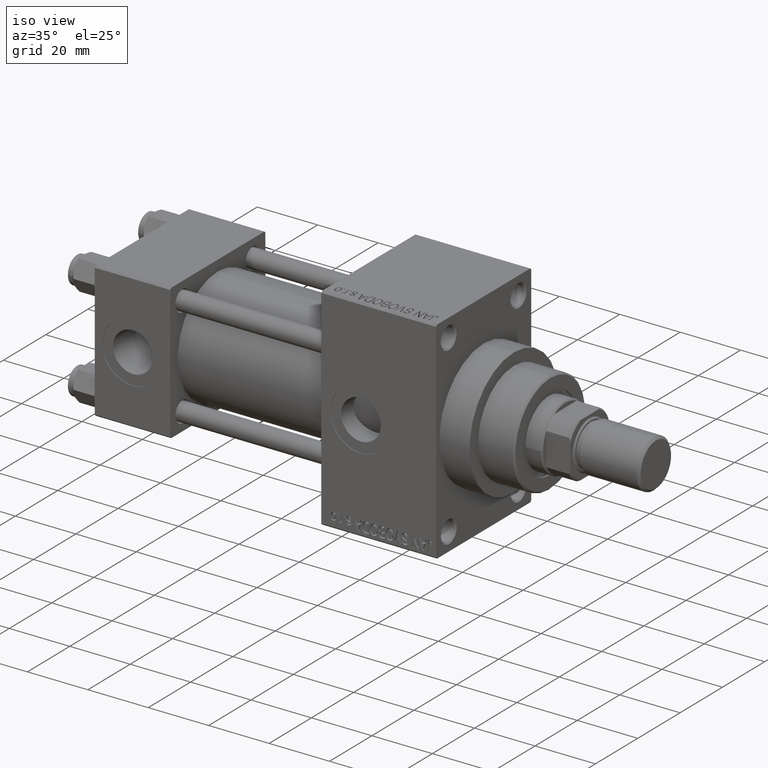
[diagram: clean part render]
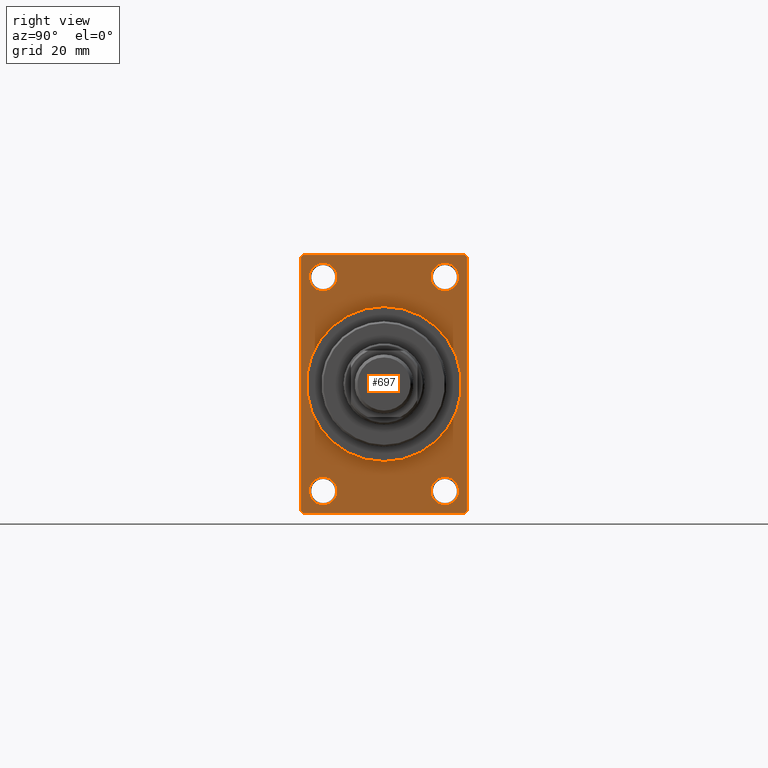
[diagram: tour spotlight — one face highlighted and labeled with its STEP entity id]
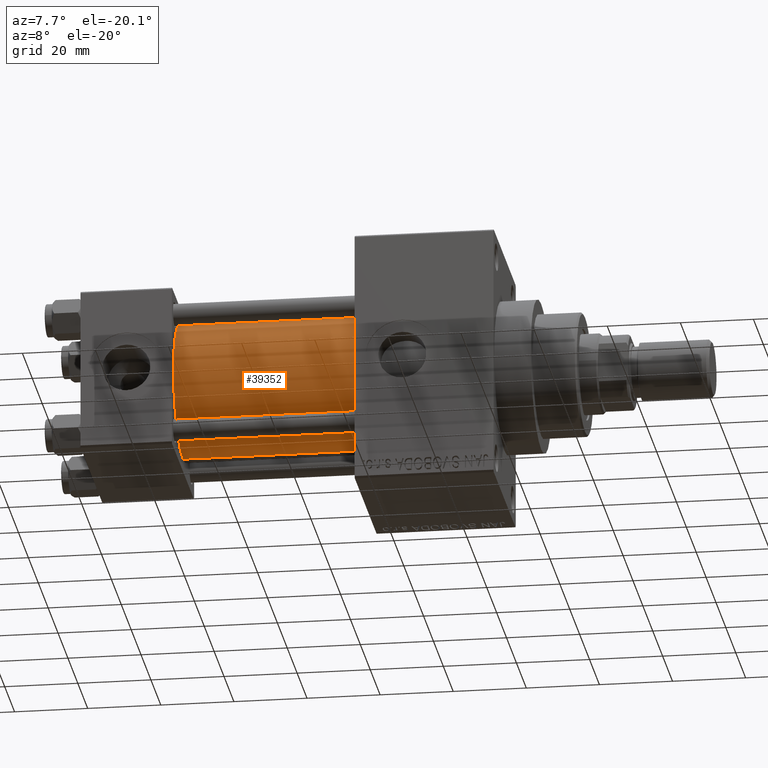
[diagram: tour spotlight — one face highlighted and labeled with its STEP entity id]
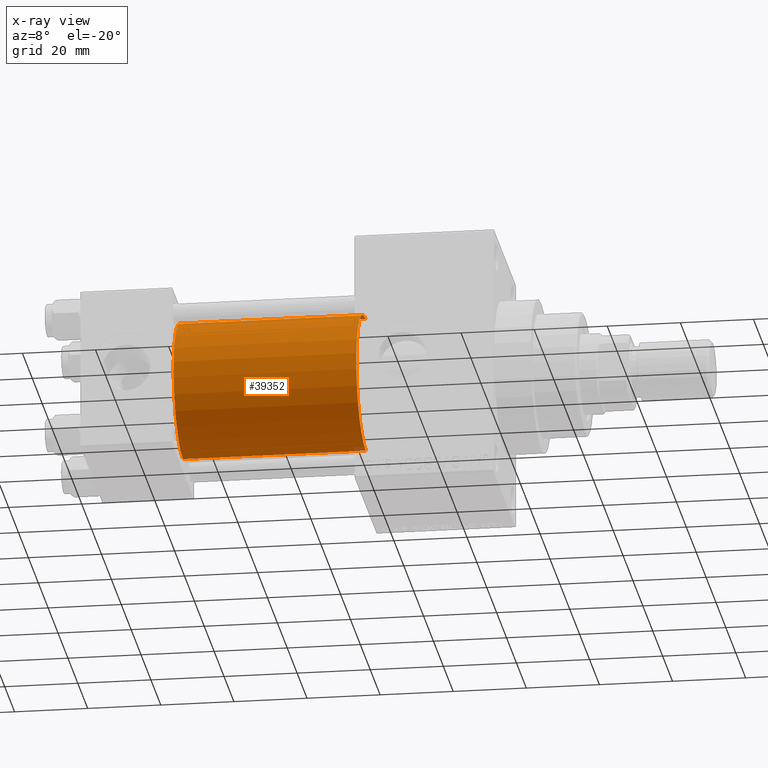
[diagram: x-ray of the same camera — body ghosted, this tour face saturated]
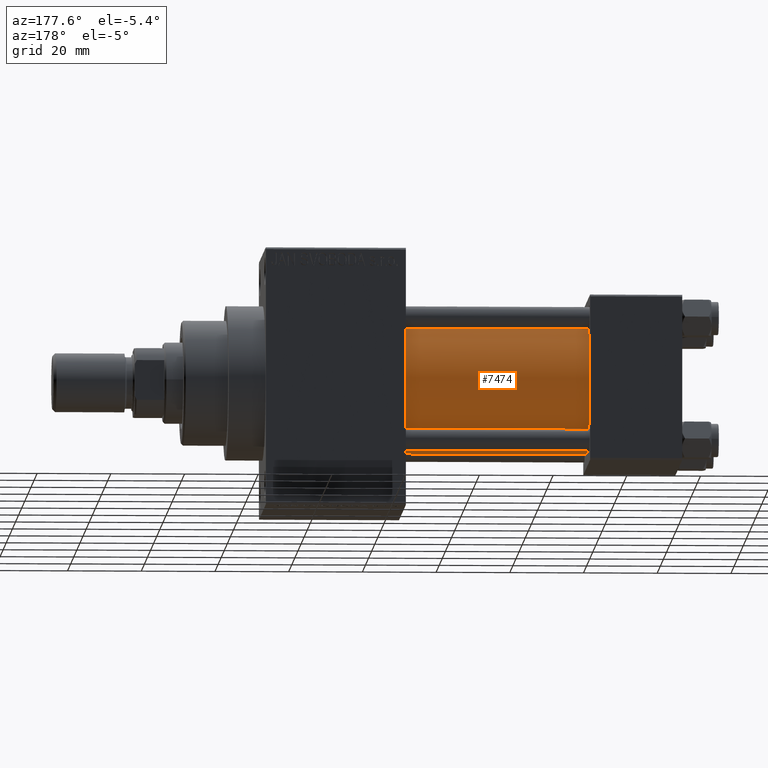
[diagram: tour spotlight — one face highlighted and labeled with its STEP entity id]
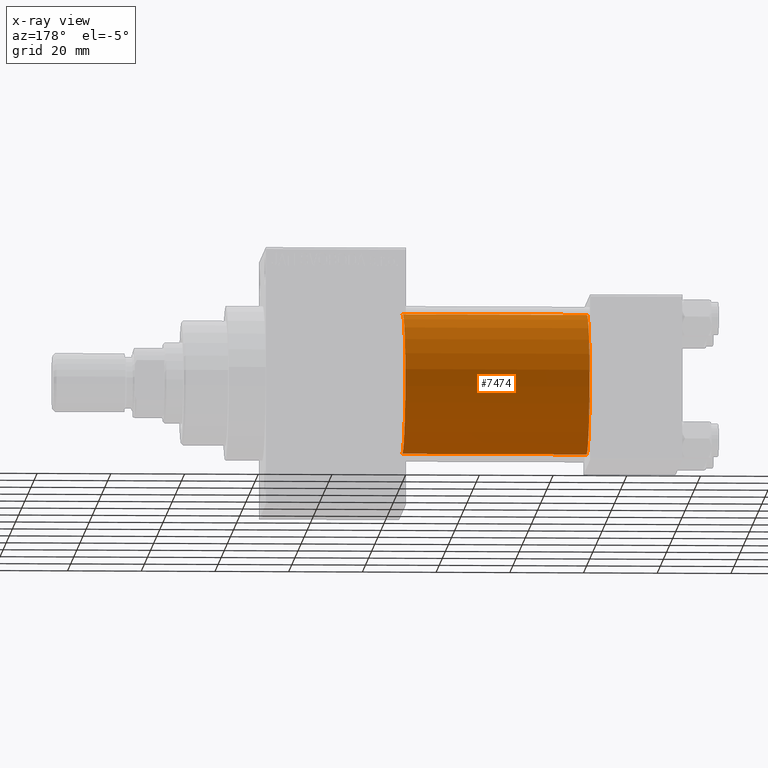
[diagram: x-ray of the same camera — body ghosted, this tour face saturated]
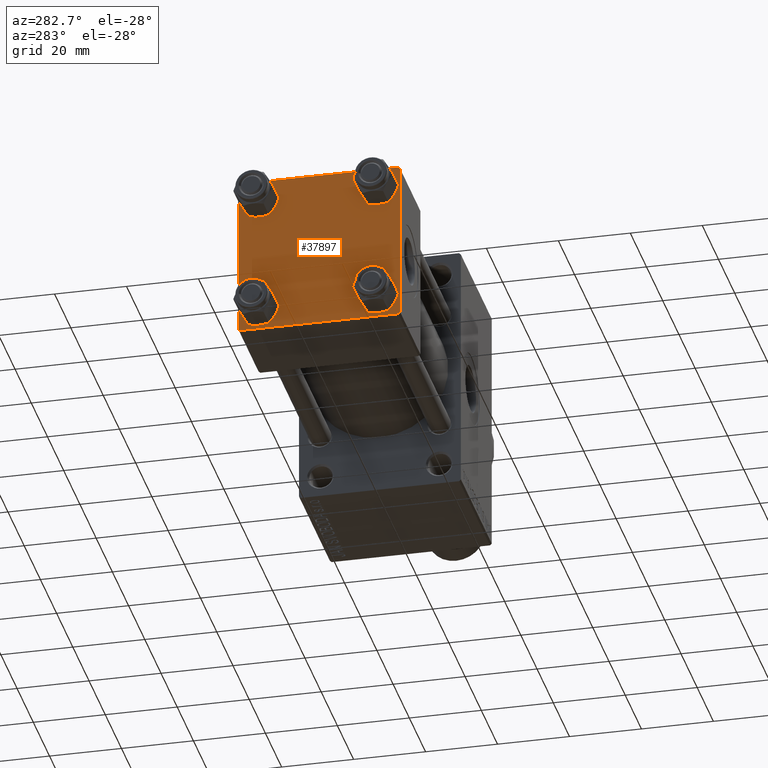
[diagram: tour spotlight — one face highlighted and labeled with its STEP entity id]
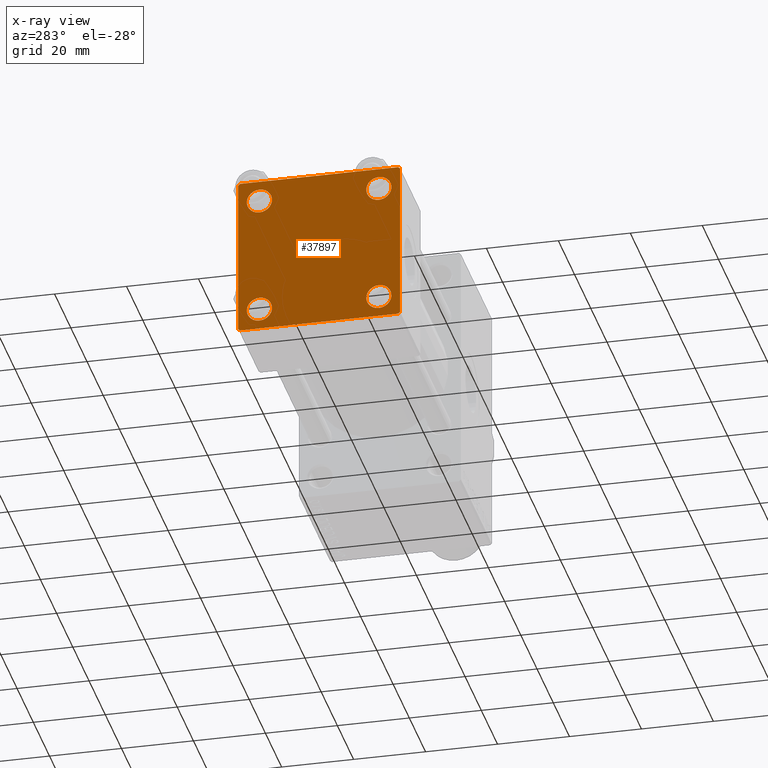
[diagram: x-ray of the same camera — body ghosted, this tour face saturated]
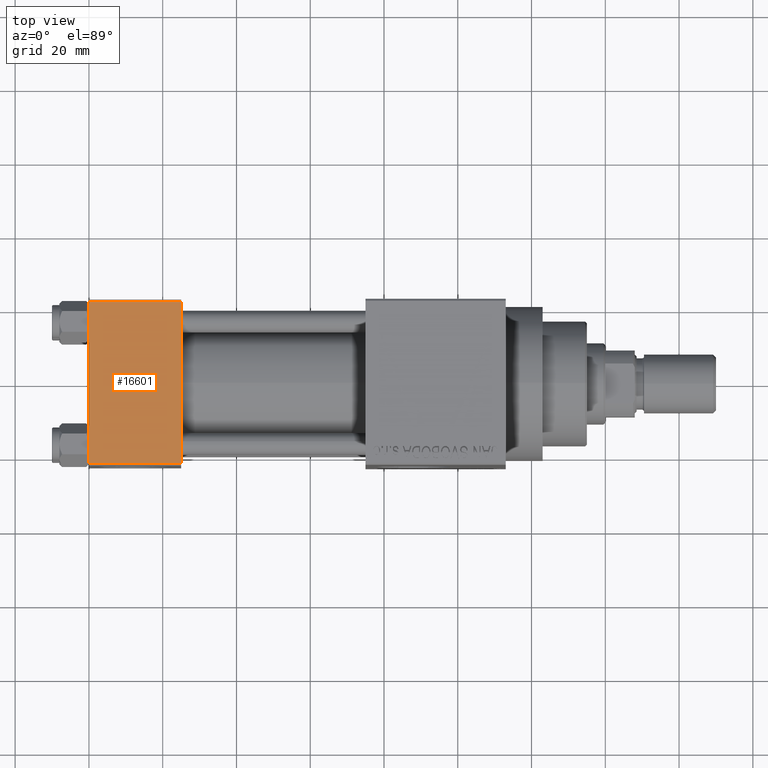
[diagram: tour spotlight — one face highlighted and labeled with its STEP entity id]
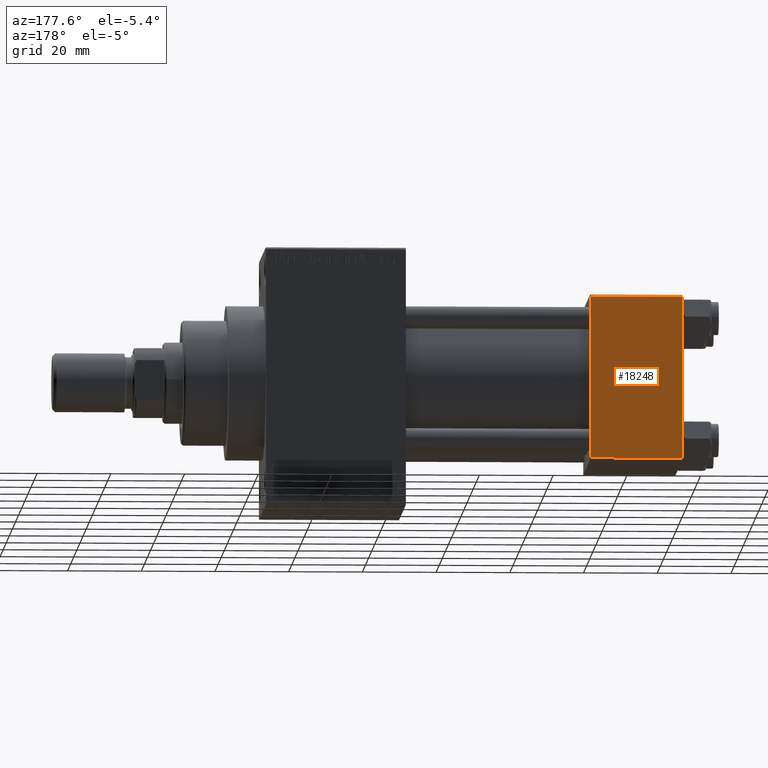
[diagram: tour spotlight — one face highlighted and labeled with its STEP entity id]
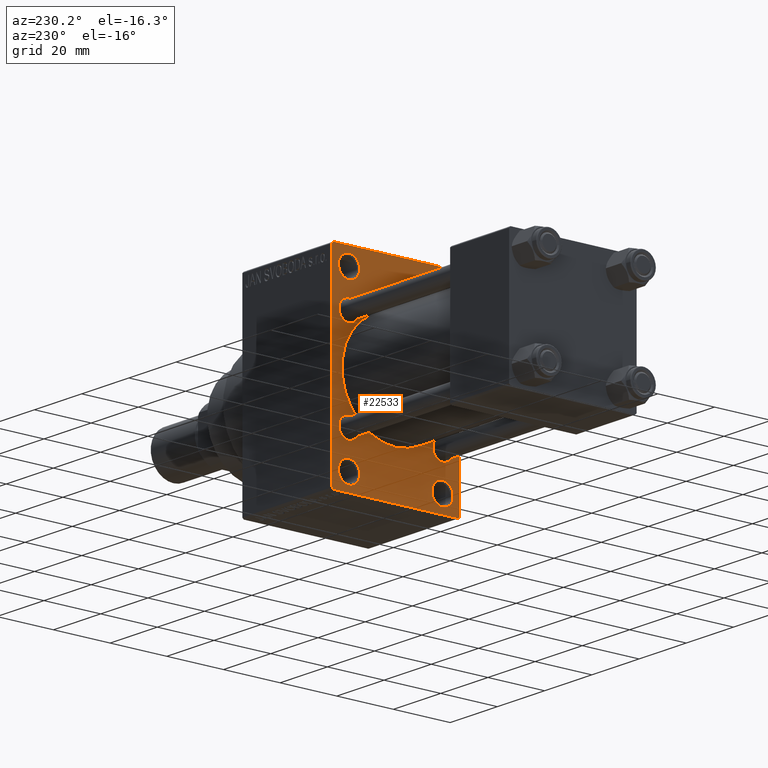
[diagram: tour spotlight — one face highlighted and labeled with its STEP entity id]
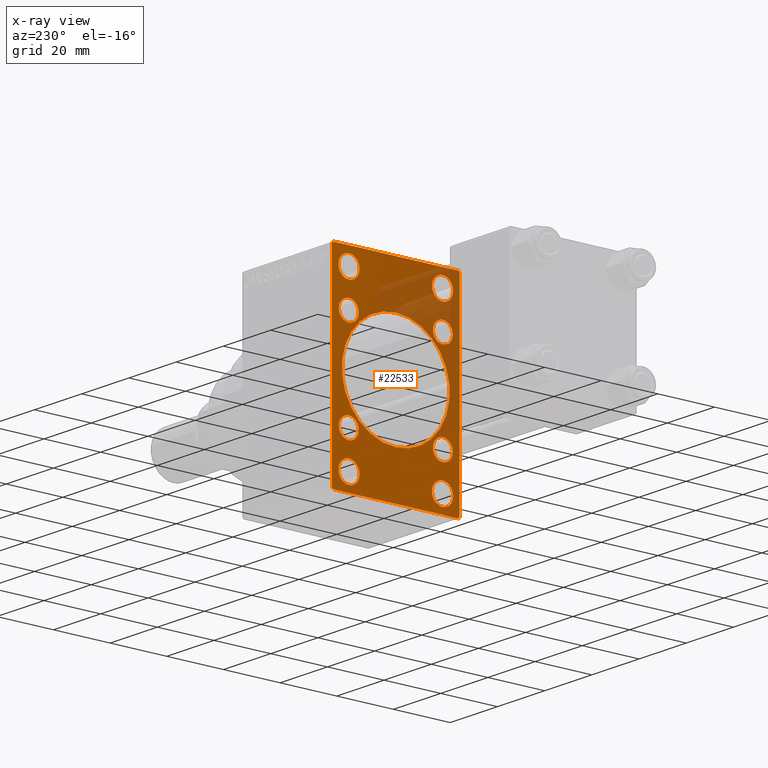
[diagram: x-ray of the same camera — body ghosted, this tour face saturated]
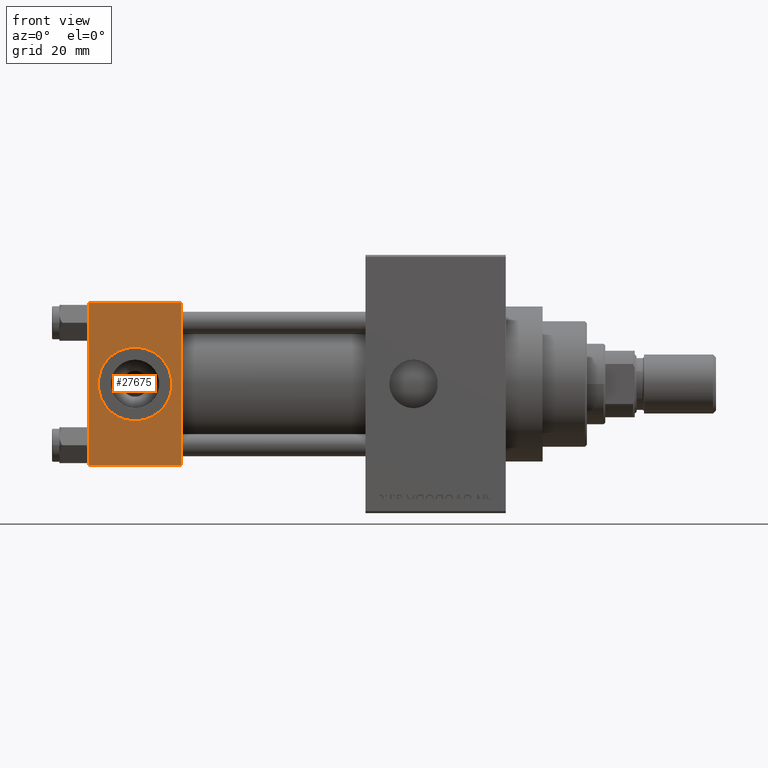
[diagram: tour spotlight — one face highlighted and labeled with its STEP entity id]
A machine part: a face-by-face anatomy tour. The part has 1117 B-rep faces; the first image is the clean iso view, then the 8 largest visible faces are spotlighted one at a time (largest first), each with its STEP entity span.

Face 1 — right view, entity #697. In plain terms, the highlighted planar face has unit normal (-1, 0, 0).
Definition (entity closure, byte-faithful):
#456 = ORIENTED_EDGE ( 'NONE', *, *, #18081, .F. ) ;
#590 = VERTEX_POINT ( 'NONE', #22600 ) ;
#693 = CARTESIAN_POINT ( 'NONE',  ( 113.0000000000000142, -21.99999999999998934, -35.00000000000000000 ) ) ;
#697 = ADVANCED_FACE ( 'NONE', ( #6623, #24669, #34376, #45219, #1415, #19942 ), #6390, .F. ) ;
#991 = EDGE_CURVE ( 'NONE', #9793, #18972, #44683, .T. ) ;
#1415 = FACE_BOUND ( 'NONE', #45227, .T. ) ;
#2255 = CARTESIAN_POINT ( 'NONE',  ( 113.0000000000000142, 0.000000000000000000, 0.000000000000000000 ) ) ;
#2291 = DIRECTION ( 'NONE',  ( 0.000000000000000000, 0.000000000000000000, -1.000000000000000000 ) ) ;
#2499 = CARTESIAN_POINT ( 'NONE',  ( 113.0000000000000142, 0.000000000000000000, 21.00000000000000000 ) ) ;
#2612 = VECTOR ( 'NONE', #28955, 1000.000000000000000 ) ;
#2767 = ORIENTED_EDGE ( 'NONE', *, *, #30446, .T. ) ;
#3649 = VERTEX_POINT ( 'NONE', #30765 ) ;
#3726 = CARTESIAN_POINT ( 'NONE',  ( 113.0000000000000142, 21.99999999999999645, -35.00000000000000000 ) ) ;
#4084 = ORIENTED_EDGE ( 'NONE', *, *, #31707, .T. ) ;
#4218 = EDGE_CURVE ( 'NONE', #3649, #5750, #17111, .T. ) ;
#4671 = CARTESIAN_POINT ( 'NONE',  ( 113.0000000000000142, 16.50000000000000000, 29.00000000000000355 ) ) ;
#4898 = CARTESIAN_POINT ( 'NONE',  ( 113.0000000000000142, 2.571758278209441661E-15, -21.00000000000000000 ) ) ;
#5006 = LINE ( 'NONE', #693, #18879 ) ;
#5347 = DIRECTION ( 'NONE',  ( 0.000000000000000000, 0.000000000000000000, 1.000000000000000000 ) ) ;
#5750 = VERTEX_POINT ( 'NONE', #19159 ) ;
#5772 = CARTESIAN_POINT ( 'NONE',  ( 113.0000000000000142, -22.50000000000000355, -34.49999999999997158 ) ) ;
#5915 = DIRECTION ( 'NONE',  ( -0.000000000000000000, -0.7071067811865474617, -0.7071067811865474617 ) ) ;
#5944 = CARTESIAN_POINT ( 'NONE',  ( 113.0000000000000142, 16.50000000000000000, -28.99999999999999289 ) ) ;
#6132 = CARTESIAN_POINT ( 'NONE',  ( 113.0000000000000142, 0.000000000000000000, 0.000000000000000000 ) ) ;
#6390 = PLANE ( 'NONE',  #37746 ) ;
#6623 = FACE_BOUND ( 'NONE', #17358, .T. ) ;
#6760 = VECTOR ( 'NONE', #35593, 1000.000000000000114 ) ;
#7608 = LINE ( 'NONE', #44437, #31139 ) ;
#7615 = VECTOR ( 'NONE', #5915, 1000.000000000000114 ) ;
#7912 = EDGE_CURVE ( 'NONE', #15150, #12260, #40270, .T. ) ;
#8030 = CARTESIAN_POINT ( 'NONE',  ( 113.0000000000000142, 16.50000000000000000, -28.99999999999999289 ) ) ;
#8871 = CARTESIAN_POINT ( 'NONE',  ( 113.0000000000000142, 0.000000000000000000, 0.000000000000000000 ) ) ;
#9075 = ORIENTED_EDGE ( 'NONE', *, *, #4218, .T. ) ;
#9793 = VERTEX_POINT ( 'NONE', #32530 ) ;
#9942 = DIRECTION ( 'NONE',  ( -1.000000000000000000, -0.000000000000000000, -0.000000000000000000 ) ) ;
#10283 = DIRECTION ( 'NONE',  ( 0.000000000000000000, 0.000000000000000000, 1.000000000000000000 ) ) ;
#10357 = EDGE_CURVE ( 'NONE', #44899, #12260, #5006, .T. ) ;
#10373 = LINE ( 'NONE', #33457, #20873 ) ;
#10846 = EDGE_CURVE ( 'NONE', #20863, #15194, #7608, .T. ) ;
#11439 = CARTESIAN_POINT ( 'NONE',  ( 113.0000000000000142, 22.49999999999999645, -34.50000000000000000 ) ) ;
#12089 = LINE ( 'NONE', #16171, #45449 ) ;
#12260 = VERTEX_POINT ( 'NONE', #27671 ) ;
#12819 = CARTESIAN_POINT ( 'NONE',  ( 113.0000000000000142, -16.50000000000000000, 32.75000000000007816 ) ) ;
#13864 = CARTESIAN_POINT ( 'NONE',  ( 113.0000000000000142, -21.99999999999998934, 35.00000000000000000 ) ) ;
#14223 = EDGE_LOOP ( 'NONE', ( #41209, #30591 ) ) ;
#15150 = VERTEX_POINT ( 'NONE', #3726 ) ;
#15194 = VERTEX_POINT ( 'NONE', #13864 ) ;
#15262 = AXIS2_PLACEMENT_3D ( 'NONE', #34666, #31512, #32237 ) ;
#15949 = DIRECTION ( 'NONE',  ( -1.000000000000000000, -0.000000000000000000, -0.000000000000000000 ) ) ;
#15993 = DIRECTION ( 'NONE',  ( -0.000000000000000000, 0.7071067811865474617, 0.7071067811865474617 ) ) ;
#16171 = CARTESIAN_POINT ( 'NONE',  ( 113.0000000000000142, -22.50000000000000355, 35.00000000000000000 ) ) ;
#16524 = CARTESIAN_POINT ( 'NONE',  ( 113.0000000000000142, 22.49999999999999645, -34.50000000000000000 ) ) ;
#16701 = AXIS2_PLACEMENT_3D ( 'NONE', #45082, #15949, #5347 ) ;
#16921 = ORIENTED_EDGE ( 'NONE', *, *, #35511, .F. ) ;
#17029 = DIRECTION ( 'NONE',  ( 0.000000000000000000, 0.000000000000000000, 1.000000000000000000 ) ) ;
#17111 = CIRCLE ( 'NONE', #19420, 3.750000000000072831 ) ;
#17358 = EDGE_LOOP ( 'NONE', ( #4084, #31947 ) ) ;
#17863 = ORIENTED_EDGE ( 'NONE', *, *, #7912, .F. ) ;
#18081 = EDGE_CURVE ( 'NONE', #28702, #44417, #29646, .T. ) ;
#18152 = DIRECTION ( 'NONE',  ( 0.000000000000000000, 0.000000000000000000, 1.000000000000000000 ) ) ;
#18879 = VECTOR ( 'NONE', #27137, 999.9999999999998863 ) ;
#18972 = VERTEX_POINT ( 'NONE', #29293 ) ;
#19159 = CARTESIAN_POINT ( 'NONE',  ( 113.0000000000000142, 16.50000000000000000, 25.24999999999993250 ) ) ;
#19310 = VERTEX_POINT ( 'NONE', #47317 ) ;
#19393 = EDGE_CURVE ( 'NONE', #15150, #20142, #41507, .T. ) ;
#19420 = AXIS2_PLACEMENT_3D ( 'NONE', #4671, #30875, #34266 ) ;
#19593 = ORIENTED_EDGE ( 'NONE', *, *, #19393, .T. ) ;
#19838 = DIRECTION ( 'NONE',  ( 0.000000000000000000, 0.000000000000000000, -1.000000000000000000 ) ) ;
#19942 = FACE_OUTER_BOUND ( 'NONE', #39600, .T. ) ;
#20142 = VERTEX_POINT ( 'NONE', #16524 ) ;
#20673 = CIRCLE ( 'NONE', #32981, 21.00000000000000000 ) ;
#20698 = CIRCLE ( 'NONE', #45315, 3.750000000000076383 ) ;
#20863 = VERTEX_POINT ( 'NONE', #33937 ) ;
#20873 = VECTOR ( 'NONE', #25283, 1000.000000000000000 ) ;
#21036 = CARTESIAN_POINT ( 'NONE',  ( 113.0000000000000142, 22.49999999999999645, -35.00000000000000000 ) ) ;
#21065 = DIRECTION ( 'NONE',  ( -0.000000000000000000, 0.000000000000000000, 1.000000000000000000 ) ) ;
#21075 = LINE ( 'NONE', #32388, #7615 ) ;
#21510 = EDGE_CURVE ( 'NONE', #5750, #3649, #46664, .T. ) ;
#22130 = EDGE_CURVE ( 'NONE', #18972, #9793, #30520, .T. ) ;
#22277 = DIRECTION ( 'NONE',  ( 0.000000000000000000, -1.000000000000000000, 0.000000000000000000 ) ) ;
#22499 = CARTESIAN_POINT ( 'NONE',  ( 113.0000000000000142, 16.50000000000000000, -32.75000000000007105 ) ) ;
#22600 = CARTESIAN_POINT ( 'NONE',  ( 113.0000000000000142, -22.50000000000000355, 34.50000000000000000 ) ) ;
#23405 = EDGE_CURVE ( 'NONE', #32462, #20863, #32478, .T. ) ;
#24607 = DIRECTION ( 'NONE',  ( 0.000000000000000000, 0.000000000000000000, 1.000000000000000000 ) ) ;
#24669 = FACE_BOUND ( 'NONE', #14223, .T. ) ;
#24934 = DIRECTION ( 'NONE',  ( 0.000000000000000000, 0.000000000000000000, 1.000000000000000000 ) ) ;
#25008 = CARTESIAN_POINT ( 'NONE',  ( 113.0000000000000142, 21.99999999999999645, 35.00000000000000000 ) ) ;
#25178 = DIRECTION ( 'NONE',  ( -1.000000000000000000, -0.000000000000000000, -0.000000000000000000 ) ) ;
#25283 = DIRECTION ( 'NONE',  ( 0.000000000000000000, 0.000000000000000000, -1.000000000000000000 ) ) ;
#25294 = ORIENTED_EDGE ( 'NONE', *, *, #25854, .F. ) ;
#25854 = EDGE_CURVE ( 'NONE', #44417, #28702, #20673, .T. ) ;
#26887 = CIRCLE ( 'NONE', #30687, 3.750000000000069278 ) ;
#27137 = DIRECTION ( 'NONE',  ( 0.000000000000000000, 0.7071067811865376918, -0.7071067811865574537 ) ) ;
#27279 = DIRECTION ( 'NONE',  ( 1.000000000000000000, 0.000000000000000000, 0.000000000000000000 ) ) ;
#27331 = ORIENTED_EDGE ( 'NONE', *, *, #23405, .T. ) ;
#27341 = ORIENTED_EDGE ( 'NONE', *, *, #42135, .T. ) ;
#27533 = CIRCLE ( 'NONE', #15262, 3.750000000000069278 ) ;
#27591 = DIRECTION ( 'NONE',  ( -1.000000000000000000, -0.000000000000000000, -0.000000000000000000 ) ) ;
#27671 = CARTESIAN_POINT ( 'NONE',  ( 113.0000000000000142, -21.99999999999997513, -35.00000000000000000 ) ) ;
#28702 = VERTEX_POINT ( 'NONE', #2499 ) ;
#28955 = DIRECTION ( 'NONE',  ( 0.000000000000000000, -1.000000000000000000, 0.000000000000000000 ) ) ;
#29293 = CARTESIAN_POINT ( 'NONE',  ( 113.0000000000000142, -16.50000000000000000, -32.75000000000007105 ) ) ;
#29646 = CIRCLE ( 'NONE', #45804, 21.00000000000000000 ) ;
#29904 = CIRCLE ( 'NONE', #33765, 3.750000000000076383 ) ;
#29974 = EDGE_LOOP ( 'NONE', ( #47578, #9075 ) ) ;
#30259 = VERTEX_POINT ( 'NONE', #39248 ) ;
#30304 = ORIENTED_EDGE ( 'NONE', *, *, #10846, .T. ) ;
#30446 = EDGE_CURVE ( 'NONE', #42321, #19310, #29904, .T. ) ;
#30520 = CIRCLE ( 'NONE', #16701, 3.750000000000076383 ) ;
#30591 = ORIENTED_EDGE ( 'NONE', *, *, #991, .T. ) ;
#30687 = AXIS2_PLACEMENT_3D ( 'NONE', #38669, #45442, #17029 ) ;
#30765 = CARTESIAN_POINT ( 'NONE',  ( 113.0000000000000142, 16.50000000000000000, 32.75000000000007816 ) ) ;
#30875 = DIRECTION ( 'NONE',  ( -1.000000000000000000, -0.000000000000000000, -0.000000000000000000 ) ) ;
#31139 = VECTOR ( 'NONE', #22277, 1000.000000000000000 ) ;
#31164 = EDGE_LOOP ( 'NONE', ( #2767, #37282 ) ) ;
#31331 = ORIENTED_EDGE ( 'NONE', *, *, #35236, .T. ) ;
#31512 = DIRECTION ( 'NONE',  ( -1.000000000000000000, -0.000000000000000000, -0.000000000000000000 ) ) ;
#31707 = EDGE_CURVE ( 'NONE', #30259, #37151, #26887, .T. ) ;
#31947 = ORIENTED_EDGE ( 'NONE', *, *, #40737, .T. ) ;
#32049 = AXIS2_PLACEMENT_3D ( 'NONE', #39847, #25178, #24934 ) ;
#32237 = DIRECTION ( 'NONE',  ( 0.000000000000000000, 0.000000000000000000, 1.000000000000000000 ) ) ;
#32388 = CARTESIAN_POINT ( 'NONE',  ( 113.0000000000000142, -22.50000000000000355, 34.50000000000000000 ) ) ;
#32462 = VERTEX_POINT ( 'NONE', #32865 ) ;
#32478 = LINE ( 'NONE', #25008, #6760 ) ;
#32530 = CARTESIAN_POINT ( 'NONE',  ( 113.0000000000000142, -16.50000000000000000, -25.24999999999992184 ) ) ;
#32865 = CARTESIAN_POINT ( 'NONE',  ( 113.0000000000000142, 22.49999999999999645, 34.50000000000000000 ) ) ;
#32981 = AXIS2_PLACEMENT_3D ( 'NONE', #6132, #35241, #2291 ) ;
#33457 = CARTESIAN_POINT ( 'NONE',  ( 113.0000000000000142, 22.49999999999999645, 35.00000000000000000 ) ) ;
#33765 = AXIS2_PLACEMENT_3D ( 'NONE', #5944, #27591, #10283 ) ;
#33937 = CARTESIAN_POINT ( 'NONE',  ( 113.0000000000000142, 21.99999999999999645, 35.00000000000000000 ) ) ;
#34266 = DIRECTION ( 'NONE',  ( 0.000000000000000000, 0.000000000000000000, 1.000000000000000000 ) ) ;
#34376 = FACE_BOUND ( 'NONE', #31164, .T. ) ;
#34666 = CARTESIAN_POINT ( 'NONE',  ( 113.0000000000000142, -16.50000000000000000, 29.00000000000000711 ) ) ;
#35236 = EDGE_CURVE ( 'NONE', #590, #44899, #12089, .T. ) ;
#35241 = DIRECTION ( 'NONE',  ( 1.000000000000000000, 0.000000000000000000, 0.000000000000000000 ) ) ;
#35409 = ORIENTED_EDGE ( 'NONE', *, *, #10357, .T. ) ;
#35511 = EDGE_CURVE ( 'NONE', #32462, #20142, #10373, .T. ) ;
#35593 = DIRECTION ( 'NONE',  ( 0.000000000000000000, -0.7071067811865474617, 0.7071067811865474617 ) ) ;
#35738 = DIRECTION ( 'NONE',  ( -1.000000000000000000, 0.000000000000000000, -0.000000000000000000 ) ) ;
#36897 = DIRECTION ( 'NONE',  ( -1.000000000000000000, -0.000000000000000000, -0.000000000000000000 ) ) ;
#37151 = VERTEX_POINT ( 'NONE', #12819 ) ;
#37282 = ORIENTED_EDGE ( 'NONE', *, *, #43347, .T. ) ;
#37746 = AXIS2_PLACEMENT_3D ( 'NONE', #8871, #35738, #21065 ) ;
#38669 = CARTESIAN_POINT ( 'NONE',  ( 113.0000000000000142, -16.50000000000000000, 29.00000000000000711 ) ) ;
#39248 = CARTESIAN_POINT ( 'NONE',  ( 113.0000000000000142, -16.50000000000000000, 25.24999999999993960 ) ) ;
#39600 = EDGE_LOOP ( 'NONE', ( #31331, #35409, #17863, #19593, #16921, #27331, #30304, #27341 ) ) ;
#39847 = CARTESIAN_POINT ( 'NONE',  ( 113.0000000000000142, 16.50000000000000000, 29.00000000000000355 ) ) ;
#40270 = LINE ( 'NONE', #21036, #2612 ) ;
#40737 = EDGE_CURVE ( 'NONE', #37151, #30259, #27533, .T. ) ;
#41209 = ORIENTED_EDGE ( 'NONE', *, *, #22130, .T. ) ;
#41215 = DIRECTION ( 'NONE',  ( 0.000000000000000000, 0.000000000000000000, -1.000000000000000000 ) ) ;
#41507 = LINE ( 'NONE', #11439, #41985 ) ;
#41985 = VECTOR ( 'NONE', #15993, 1000.000000000000114 ) ;
#42135 = EDGE_CURVE ( 'NONE', #15194, #590, #21075, .T. ) ;
#42321 = VERTEX_POINT ( 'NONE', #22499 ) ;
#42351 = AXIS2_PLACEMENT_3D ( 'NONE', #42908, #9942, #24607 ) ;
#42908 = CARTESIAN_POINT ( 'NONE',  ( 113.0000000000000142, -16.50000000000000000, -28.99999999999999289 ) ) ;
#43347 = EDGE_CURVE ( 'NONE', #19310, #42321, #20698, .T. ) ;
#44417 = VERTEX_POINT ( 'NONE', #4898 ) ;
#44437 = CARTESIAN_POINT ( 'NONE',  ( 113.0000000000000142, 22.49999999999999645, 35.00000000000000000 ) ) ;
#44683 = CIRCLE ( 'NONE', #42351, 3.750000000000076383 ) ;
#44899 = VERTEX_POINT ( 'NONE', #5772 ) ;
#45082 = CARTESIAN_POINT ( 'NONE',  ( 113.0000000000000142, -16.50000000000000000, -28.99999999999999289 ) ) ;
#45219 = FACE_BOUND ( 'NONE', #29974, .T. ) ;
#45227 = EDGE_LOOP ( 'NONE', ( #456, #25294 ) ) ;
#45315 = AXIS2_PLACEMENT_3D ( 'NONE', #8030, #36897, #18152 ) ;
#45442 = DIRECTION ( 'NONE',  ( -1.000000000000000000, -0.000000000000000000, -0.000000000000000000 ) ) ;
#45449 = VECTOR ( 'NONE', #41215, 1000.000000000000000 ) ;
#45804 = AXIS2_PLACEMENT_3D ( 'NONE', #2255, #27279, #19838 ) ;
#46664 = CIRCLE ( 'NONE', #32049, 3.750000000000072831 ) ;
#47317 = CARTESIAN_POINT ( 'NONE',  ( 113.0000000000000142, 16.50000000000000000, -25.24999999999992184 ) ) ;
#47578 = ORIENTED_EDGE ( 'NONE', *, *, #21510, .T. ) ;

Face 2 — auxiliary view, entity #39352. An x-ray twin of the same camera follows (body ghosted, this face saturated) — the face is partly hidden behind the body. In plain terms, the highlighted cylindrical surface (partial cylindrical patch) has radius 19 mm, axis along (-1, -0, -0).
Definition (entity closure, byte-faithful):
#346 = ORIENTED_EDGE ( 'NONE', *, *, #27844, .F. ) ;
#779 = ORIENTED_EDGE ( 'NONE', *, *, #45048, .T. ) ;
#1247 = DIRECTION ( 'NONE',  ( -1.000000000000000000, -0.000000000000000000, -0.000000000000000000 ) ) ;
#2272 = AXIS2_PLACEMENT_3D ( 'NONE', #8605, #42046, #15829 ) ;
#3392 = VERTEX_POINT ( 'NONE', #12801 ) ;
#3612 = CYLINDRICAL_SURFACE ( 'NONE', #44811, 19.00000000000000000 ) ;
#5483 = CARTESIAN_POINT ( 'NONE',  ( 75.00000000000001421, -2.602085213965210642E-15, 19.00000000000000000 ) ) ;
#5971 = AXIS2_PLACEMENT_3D ( 'NONE', #41466, #8488, #23175 ) ;
#8333 = VECTOR ( 'NONE', #1247, 1000.000000000000000 ) ;
#8488 = DIRECTION ( 'NONE',  ( 1.000000000000000000, -0.000000000000000000, 0.000000000000000000 ) ) ;
#8605 = CARTESIAN_POINT ( 'NONE',  ( 75.00000000000001421, -2.602085213965210642E-15, 0.000000000000000000 ) ) ;
#10125 = DIRECTION ( 'NONE',  ( 0.000000000000000000, 0.000000000000000000, 1.000000000000000000 ) ) ;
#12801 = CARTESIAN_POINT ( 'NONE',  ( 25.00000000000000000, -2.752562955852396712E-16, -19.00000000000000000 ) ) ;
#15829 = DIRECTION ( 'NONE',  ( 0.000000000000000000, 0.000000000000000000, -1.000000000000000000 ) ) ;
#17674 = ORIENTED_EDGE ( 'NONE', *, *, #30391, .F. ) ;
#19790 = ORIENTED_EDGE ( 'NONE', *, *, #22912, .T. ) ;
#22912 = EDGE_CURVE ( 'NONE', #28265, #3392, #26726, .T. ) ;
#23175 = DIRECTION ( 'NONE',  ( 0.000000000000000000, 0.000000000000000000, 1.000000000000000000 ) ) ;
#24794 = DIRECTION ( 'NONE',  ( -1.000000000000000000, -0.000000000000000000, -0.000000000000000000 ) ) ;
#26166 = VECTOR ( 'NONE', #39391, 1000.000000000000000 ) ;
#26726 = CIRCLE ( 'NONE', #5971, 19.00000000000000000 ) ;
#27844 = EDGE_CURVE ( 'NONE', #38976, #3392, #42128, .T. ) ;
#27849 = LINE ( 'NONE', #5483, #26166 ) ;
#28265 = VERTEX_POINT ( 'NONE', #37501 ) ;
#29677 = VERTEX_POINT ( 'NONE', #32161 ) ;
#30391 = EDGE_CURVE ( 'NONE', #29677, #38976, #38358, .T. ) ;
#32161 = CARTESIAN_POINT ( 'NONE',  ( 75.00000000000001421, -2.602085213965210642E-15, 19.00000000000000000 ) ) ;
#34205 = CARTESIAN_POINT ( 'NONE',  ( 75.00000000000001421, -2.752562955852396712E-16, -19.00000000000000000 ) ) ;
#36444 = EDGE_LOOP ( 'NONE', ( #346, #17674, #779, #19790 ) ) ;
#37501 = CARTESIAN_POINT ( 'NONE',  ( 25.00000000000000000, -2.602085213965210642E-15, 19.00000000000000000 ) ) ;
#38109 = CARTESIAN_POINT ( 'NONE',  ( 75.00000000000001421, -2.752562955852396712E-16, -19.00000000000000000 ) ) ;
#38358 = CIRCLE ( 'NONE', #2272, 19.00000000000000000 ) ;
#38976 = VERTEX_POINT ( 'NONE', #38109 ) ;
#39352 = ADVANCED_FACE ( 'NONE', ( #43574 ), #3612, .T. ) ;
#39391 = DIRECTION ( 'NONE',  ( -1.000000000000000000, -0.000000000000000000, -0.000000000000000000 ) ) ;
#41466 = CARTESIAN_POINT ( 'NONE',  ( 25.00000000000000000, -2.602085213965210642E-15, 0.000000000000000000 ) ) ;
#42046 = DIRECTION ( 'NONE',  ( 1.000000000000000000, 0.000000000000000000, 0.000000000000000000 ) ) ;
#42128 = LINE ( 'NONE', #34205, #8333 ) ;
#43337 = CARTESIAN_POINT ( 'NONE',  ( 75.00000000000001421, -2.602085213965210642E-15, 0.000000000000000000 ) ) ;
#43574 = FACE_OUTER_BOUND ( 'NONE', #36444, .T. ) ;
#44811 = AXIS2_PLACEMENT_3D ( 'NONE', #43337, #24794, #10125 ) ;
#45048 = EDGE_CURVE ( 'NONE', #29677, #28265, #27849, .T. ) ;

Face 3 — auxiliary view, entity #7474. An x-ray twin of the same camera follows (body ghosted, this face saturated) — the face is partly hidden behind the body. In plain terms, the highlighted cylindrical surface (partial cylindrical patch) has radius 19 mm, axis along (-1, -0, -0).
Definition (entity closure, byte-faithful):
#833 = AXIS2_PLACEMENT_3D ( 'NONE', #45083, #12104, #8481 ) ;
#1247 = DIRECTION ( 'NONE',  ( -1.000000000000000000, -0.000000000000000000, -0.000000000000000000 ) ) ;
#2088 = FACE_OUTER_BOUND ( 'NONE', #29481, .T. ) ;
#3392 = VERTEX_POINT ( 'NONE', #12801 ) ;
#5483 = CARTESIAN_POINT ( 'NONE',  ( 75.00000000000001421, -2.602085213965210642E-15, 19.00000000000000000 ) ) ;
#6218 = EDGE_CURVE ( 'NONE', #3392, #28265, #33325, .T. ) ;
#7010 = DIRECTION ( 'NONE',  ( 1.000000000000000000, -0.000000000000000000, 0.000000000000000000 ) ) ;
#7474 = ADVANCED_FACE ( 'NONE', ( #2088 ), #12923, .T. ) ;
#7974 = AXIS2_PLACEMENT_3D ( 'NONE', #9554, #42268, #38651 ) ;
#8333 = VECTOR ( 'NONE', #1247, 1000.000000000000000 ) ;
#8481 = DIRECTION ( 'NONE',  ( 0.000000000000000000, 0.000000000000000000, -1.000000000000000000 ) ) ;
#9554 = CARTESIAN_POINT ( 'NONE',  ( 75.00000000000001421, -2.602085213965210642E-15, 0.000000000000000000 ) ) ;
#12104 = DIRECTION ( 'NONE',  ( 1.000000000000000000, 0.000000000000000000, 0.000000000000000000 ) ) ;
#12801 = CARTESIAN_POINT ( 'NONE',  ( 25.00000000000000000, -2.752562955852396712E-16, -19.00000000000000000 ) ) ;
#12923 = CYLINDRICAL_SURFACE ( 'NONE', #7974, 19.00000000000000000 ) ;
#13527 = CARTESIAN_POINT ( 'NONE',  ( 25.00000000000000000, -2.602085213965210642E-15, 0.000000000000000000 ) ) ;
#15044 = ORIENTED_EDGE ( 'NONE', *, *, #27844, .T. ) ;
#16218 = CIRCLE ( 'NONE', #833, 19.00000000000000000 ) ;
#19208 = ORIENTED_EDGE ( 'NONE', *, *, #45048, .F. ) ;
#21690 = DIRECTION ( 'NONE',  ( 0.000000000000000000, 0.000000000000000000, 1.000000000000000000 ) ) ;
#26166 = VECTOR ( 'NONE', #39391, 1000.000000000000000 ) ;
#27844 = EDGE_CURVE ( 'NONE', #38976, #3392, #42128, .T. ) ;
#27849 = LINE ( 'NONE', #5483, #26166 ) ;
#28265 = VERTEX_POINT ( 'NONE', #37501 ) ;
#29481 = EDGE_LOOP ( 'NONE', ( #45345, #15044, #35574, #19208 ) ) ;
#29677 = VERTEX_POINT ( 'NONE', #32161 ) ;
#32161 = CARTESIAN_POINT ( 'NONE',  ( 75.00000000000001421, -2.602085213965210642E-15, 19.00000000000000000 ) ) ;
#33325 = CIRCLE ( 'NONE', #47153, 19.00000000000000000 ) ;
#33720 = EDGE_CURVE ( 'NONE', #38976, #29677, #16218, .T. ) ;
#34205 = CARTESIAN_POINT ( 'NONE',  ( 75.00000000000001421, -2.752562955852396712E-16, -19.00000000000000000 ) ) ;
#35574 = ORIENTED_EDGE ( 'NONE', *, *, #6218, .T. ) ;
#37501 = CARTESIAN_POINT ( 'NONE',  ( 25.00000000000000000, -2.602085213965210642E-15, 19.00000000000000000 ) ) ;
#38109 = CARTESIAN_POINT ( 'NONE',  ( 75.00000000000001421, -2.752562955852396712E-16, -19.00000000000000000 ) ) ;
#38651 = DIRECTION ( 'NONE',  ( 0.000000000000000000, 0.000000000000000000, 1.000000000000000000 ) ) ;
#38976 = VERTEX_POINT ( 'NONE', #38109 ) ;
#39391 = DIRECTION ( 'NONE',  ( -1.000000000000000000, -0.000000000000000000, -0.000000000000000000 ) ) ;
#42128 = LINE ( 'NONE', #34205, #8333 ) ;
#42268 = DIRECTION ( 'NONE',  ( -1.000000000000000000, -0.000000000000000000, -0.000000000000000000 ) ) ;
#45048 = EDGE_CURVE ( 'NONE', #29677, #28265, #27849, .T. ) ;
#45083 = CARTESIAN_POINT ( 'NONE',  ( 75.00000000000001421, -2.602085213965210642E-15, 0.000000000000000000 ) ) ;
#45345 = ORIENTED_EDGE ( 'NONE', *, *, #33720, .F. ) ;
#47153 = AXIS2_PLACEMENT_3D ( 'NONE', #13527, #7010, #21690 ) ;

Face 4 — auxiliary view, entity #37897. An x-ray twin of the same camera follows (body ghosted, this face saturated) — the face is partly hidden behind the body. In plain terms, the highlighted planar face has unit normal (-1, 0, 0).
Definition (entity closure, byte-faithful):
#315 = EDGE_CURVE ( 'NONE', #37464, #32508, #6976, .T. ) ;
#549 = ORIENTED_EDGE ( 'NONE', *, *, #39417, .T. ) ;
#622 = DIRECTION ( 'NONE',  ( 0.000000000000000000, 0.000000000000000000, 1.000000000000000000 ) ) ;
#1118 = EDGE_LOOP ( 'NONE', ( #37613, #29730 ) ) ;
#2440 = LINE ( 'NONE', #6745, #27738 ) ;
#2475 = CIRCLE ( 'NONE', #13986, 3.499999999999996003 ) ;
#3469 = EDGE_CURVE ( 'NONE', #4474, #12137, #10179, .T. ) ;
#3577 = EDGE_CURVE ( 'NONE', #12137, #4474, #10144, .T. ) ;
#3915 = CIRCLE ( 'NONE', #46929, 3.499999999999996003 ) ;
#4474 = VERTEX_POINT ( 'NONE', #22445 ) ;
#6324 = AXIS2_PLACEMENT_3D ( 'NONE', #9893, #31783, #24326 ) ;
#6517 = ORIENTED_EDGE ( 'NONE', *, *, #31815, .T. ) ;
#6745 = CARTESIAN_POINT ( 'NONE',  ( 0.000000000000000000, 22.25000000000014566, -22.24999999999984013 ) ) ;
#6976 = CIRCLE ( 'NONE', #41575, 3.499999999999996003 ) ;
#8830 = AXIS2_PLACEMENT_3D ( 'NONE', #36327, #21173, #42835 ) ;
#9072 = CARTESIAN_POINT ( 'NONE',  ( 0.000000000000000000, 22.50000000000000000, 22.50000000000000355 ) ) ;
#9078 = DIRECTION ( 'NONE',  ( 0.000000000000000000, 0.000000000000000000, 1.000000000000000000 ) ) ;
#9893 = CARTESIAN_POINT ( 'NONE',  ( 0.000000000000000000, 16.59999999999999787, 16.60000000000000497 ) ) ;
#10144 = CIRCLE ( 'NONE', #33228, 3.499999999999996003 ) ;
#10179 = CIRCLE ( 'NONE', #6324, 3.499999999999996003 ) ;
#10473 = FACE_BOUND ( 'NONE', #1118, .T. ) ;
#10529 = EDGE_CURVE ( 'NONE', #28168, #21815, #39598, .T. ) ;
#11841 = CARTESIAN_POINT ( 'NONE',  ( 0.000000000000000000, -16.59999999999999076, 16.60000000000000853 ) ) ;
#11931 = AXIS2_PLACEMENT_3D ( 'NONE', #42283, #31690, #9078 ) ;
#12137 = VERTEX_POINT ( 'NONE', #29637 ) ;
#12440 = EDGE_CURVE ( 'NONE', #24336, #33484, #28067, .T. ) ;
#12702 = LINE ( 'NONE', #9072, #33899 ) ;
#12932 = DIRECTION ( 'NONE',  ( 0.000000000000000000, -1.000000000000000000, -7.709882115452476934E-17 ) ) ;
#13321 = DIRECTION ( 'NONE',  ( 0.000000000000000000, 0.7071067811865474617, -0.7071067811865474617 ) ) ;
#13847 = FACE_BOUND ( 'NONE', #38062, .T. ) ;
#13986 = AXIS2_PLACEMENT_3D ( 'NONE', #41706, #30382, #34005 ) ;
#14433 = EDGE_CURVE ( 'NONE', #16091, #35099, #39211, .T. ) ;
#14595 = CARTESIAN_POINT ( 'NONE',  ( 0.000000000000000000, 22.50000000000000000, 21.99999999999999645 ) ) ;
#14676 = CIRCLE ( 'NONE', #26957, 3.499999999999996003 ) ;
#16091 = VERTEX_POINT ( 'NONE', #34549 ) ;
#16590 = VECTOR ( 'NONE', #20181, 1000.000000000000000 ) ;
#17165 = CARTESIAN_POINT ( 'NONE',  ( 0.000000000000000000, 22.24999999999999645, 22.24999999999999645 ) ) ;
#17541 = VERTEX_POINT ( 'NONE', #25924 ) ;
#18434 = VERTEX_POINT ( 'NONE', #31775 ) ;
#18539 = LINE ( 'NONE', #26688, #34034 ) ;
#18865 = EDGE_CURVE ( 'NONE', #44161, #35099, #35799, .T. ) ;
#18921 = CARTESIAN_POINT ( 'NONE',  ( 0.000000000000000000, 16.59999999999999787, -16.60000000000000497 ) ) ;
#18952 = EDGE_CURVE ( 'NONE', #33000, #16091, #43038, .T. ) ;
#20181 = DIRECTION ( 'NONE',  ( 0.000000000000000000, 0.000000000000000000, -1.000000000000000000 ) ) ;
#20232 = CARTESIAN_POINT ( 'NONE',  ( 0.000000000000000000, 22.50000000000000000, -21.99999999999996803 ) ) ;
#20680 = CARTESIAN_POINT ( 'NONE',  ( 0.000000000000000000, -16.59999999999999076, 20.10000000000000853 ) ) ;
#21173 = DIRECTION ( 'NONE',  ( 1.000000000000000000, -0.000000000000000000, 0.000000000000000000 ) ) ;
#21200 = CARTESIAN_POINT ( 'NONE',  ( 0.000000000000000000, 21.99999999999999289, -22.49999999999999645 ) ) ;
#21731 = EDGE_LOOP ( 'NONE', ( #37334, #46447 ) ) ;
#21765 = LINE ( 'NONE', #44156, #36090 ) ;
#21815 = VERTEX_POINT ( 'NONE', #38363 ) ;
#22234 = PLANE ( 'NONE',  #40144 ) ;
#22445 = CARTESIAN_POINT ( 'NONE',  ( 0.000000000000000000, 16.59999999999999787, 20.10000000000000142 ) ) ;
#24326 = DIRECTION ( 'NONE',  ( 0.000000000000000000, 0.000000000000000000, 1.000000000000000000 ) ) ;
#24336 = VERTEX_POINT ( 'NONE', #26947 ) ;
#24739 = DIRECTION ( 'NONE',  ( 0.000000000000000000, -1.000000000000000000, -2.312964634635742957E-16 ) ) ;
#24903 = FACE_BOUND ( 'NONE', #21731, .T. ) ;
#25127 = ORIENTED_EDGE ( 'NONE', *, *, #34316, .F. ) ;
#25149 = DIRECTION ( 'NONE',  ( -1.000000000000000000, 0.000000000000000000, -0.000000000000000000 ) ) ;
#25924 = CARTESIAN_POINT ( 'NONE',  ( 0.000000000000000000, 21.99999999999999289, 22.50000000000000355 ) ) ;
#25995 = CARTESIAN_POINT ( 'NONE',  ( 0.000000000000000000, 16.59999999999999787, 16.60000000000000497 ) ) ;
#26688 = CARTESIAN_POINT ( 'NONE',  ( 0.000000000000000000, 22.50000000000000000, 22.50000000000000355 ) ) ;
#26947 = CARTESIAN_POINT ( 'NONE',  ( 0.000000000000000000, -16.59999999999999076, -20.10000000000000497 ) ) ;
#26957 = AXIS2_PLACEMENT_3D ( 'NONE', #38833, #42464, #39063 ) ;
#26988 = ORIENTED_EDGE ( 'NONE', *, *, #14433, .T. ) ;
#27619 = EDGE_CURVE ( 'NONE', #17541, #35796, #35437, .T. ) ;
#27620 = CARTESIAN_POINT ( 'NONE',  ( 0.000000000000000000, 22.50000000000000000, -22.49999999999999645 ) ) ;
#27738 = VECTOR ( 'NONE', #43100, 1000.000000000000000 ) ;
#27935 = VERTEX_POINT ( 'NONE', #20232 ) ;
#28067 = CIRCLE ( 'NONE', #8830, 3.499999999999996003 ) ;
#28168 = VERTEX_POINT ( 'NONE', #32731 ) ;
#28467 = CARTESIAN_POINT ( 'NONE',  ( 0.000000000000000000, -22.50000000000000000, -21.99999999999997158 ) ) ;
#29240 = CARTESIAN_POINT ( 'NONE',  ( 0.000000000000000000, -16.59999999999999076, 13.10000000000001030 ) ) ;
#29637 = CARTESIAN_POINT ( 'NONE',  ( 0.000000000000000000, 16.59999999999999787, 13.10000000000000675 ) ) ;
#29730 = ORIENTED_EDGE ( 'NONE', *, *, #33585, .T. ) ;
#30382 = DIRECTION ( 'NONE',  ( 1.000000000000000000, -0.000000000000000000, 0.000000000000000000 ) ) ;
#31690 = DIRECTION ( 'NONE',  ( 1.000000000000000000, -0.000000000000000000, 0.000000000000000000 ) ) ;
#31775 = CARTESIAN_POINT ( 'NONE',  ( 0.000000000000000000, -21.99999999999997868, 22.50000000000000000 ) ) ;
#31783 = DIRECTION ( 'NONE',  ( 1.000000000000000000, -0.000000000000000000, 0.000000000000000000 ) ) ;
#31815 = EDGE_CURVE ( 'NONE', #44161, #18434, #21765, .T. ) ;
#32508 = VERTEX_POINT ( 'NONE', #29240 ) ;
#32731 = CARTESIAN_POINT ( 'NONE',  ( 0.000000000000000000, 16.59999999999999787, -13.10000000000000675 ) ) ;
#33000 = VERTEX_POINT ( 'NONE', #21200 ) ;
#33228 = AXIS2_PLACEMENT_3D ( 'NONE', #25995, #40679, #37055 ) ;
#33484 = VERTEX_POINT ( 'NONE', #37653 ) ;
#33519 = EDGE_CURVE ( 'NONE', #21815, #28168, #3915, .T. ) ;
#33585 = EDGE_CURVE ( 'NONE', #32508, #37464, #14676, .T. ) ;
#33899 = VECTOR ( 'NONE', #12932, 1000.000000000000000 ) ;
#34005 = DIRECTION ( 'NONE',  ( 0.000000000000000000, 0.000000000000000000, 1.000000000000000000 ) ) ;
#34034 = VECTOR ( 'NONE', #37753, 1000.000000000000000 ) ;
#34316 = EDGE_CURVE ( 'NONE', #17541, #18434, #12702, .T. ) ;
#34549 = CARTESIAN_POINT ( 'NONE',  ( 0.000000000000000000, -21.99999999999997158, -22.50000000000000711 ) ) ;
#34727 = ORIENTED_EDGE ( 'NONE', *, *, #47637, .T. ) ;
#34851 = CARTESIAN_POINT ( 'NONE',  ( 0.000000000000000000, -22.50000000000000000, 22.50000000000000000 ) ) ;
#35099 = VERTEX_POINT ( 'NONE', #28467 ) ;
#35368 = DIRECTION ( 'NONE',  ( 0.000000000000000000, -0.7071067811865426878, 0.7071067811865524577 ) ) ;
#35437 = LINE ( 'NONE', #17165, #37607 ) ;
#35796 = VERTEX_POINT ( 'NONE', #14595 ) ;
#35799 = LINE ( 'NONE', #34851, #16590 ) ;
#35822 = ORIENTED_EDGE ( 'NONE', *, *, #18865, .F. ) ;
#35970 = DIRECTION ( 'NONE',  ( -0.000000000000000000, 0.000000000000000000, 1.000000000000000000 ) ) ;
#36090 = VECTOR ( 'NONE', #37145, 999.9999999999998863 ) ;
#36210 = FACE_BOUND ( 'NONE', #43354, .T. ) ;
#36327 = CARTESIAN_POINT ( 'NONE',  ( 0.000000000000000000, -16.59999999999999076, -16.60000000000000853 ) ) ;
#36910 = CARTESIAN_POINT ( 'NONE',  ( 0.000000000000000000, 0.000000000000000000, 0.000000000000000000 ) ) ;
#37055 = DIRECTION ( 'NONE',  ( 0.000000000000000000, 0.000000000000000000, 1.000000000000000000 ) ) ;
#37134 = EDGE_CURVE ( 'NONE', #33484, #24336, #2475, .T. ) ;
#37145 = DIRECTION ( 'NONE',  ( -0.000000000000000000, 0.7071067811865525687, 0.7071067811865425767 ) ) ;
#37334 = ORIENTED_EDGE ( 'NONE', *, *, #37134, .T. ) ;
#37398 = ORIENTED_EDGE ( 'NONE', *, *, #10529, .T. ) ;
#37464 = VERTEX_POINT ( 'NONE', #20680 ) ;
#37607 = VECTOR ( 'NONE', #13321, 1000.000000000000114 ) ;
#37613 = ORIENTED_EDGE ( 'NONE', *, *, #315, .T. ) ;
#37653 = CARTESIAN_POINT ( 'NONE',  ( 0.000000000000000000, -16.59999999999999076, -13.10000000000001030 ) ) ;
#37753 = DIRECTION ( 'NONE',  ( 0.000000000000000000, 0.000000000000000000, -1.000000000000000000 ) ) ;
#37897 = ADVANCED_FACE ( 'NONE', ( #10473, #24903, #36210, #13847, #43923 ), #22234, .T. ) ;
#38062 = EDGE_LOOP ( 'NONE', ( #39364, #44291 ) ) ;
#38363 = CARTESIAN_POINT ( 'NONE',  ( 0.000000000000000000, 16.59999999999999787, -20.10000000000000142 ) ) ;
#38833 = CARTESIAN_POINT ( 'NONE',  ( 0.000000000000000000, -16.59999999999999076, 16.60000000000000853 ) ) ;
#39063 = DIRECTION ( 'NONE',  ( 0.000000000000000000, 0.000000000000000000, 1.000000000000000000 ) ) ;
#39127 = ORIENTED_EDGE ( 'NONE', *, *, #33519, .T. ) ;
#39211 = LINE ( 'NONE', #46462, #46454 ) ;
#39281 = ORIENTED_EDGE ( 'NONE', *, *, #18952, .T. ) ;
#39364 = ORIENTED_EDGE ( 'NONE', *, *, #3469, .T. ) ;
#39417 = EDGE_CURVE ( 'NONE', #35796, #27935, #18539, .T. ) ;
#39598 = CIRCLE ( 'NONE', #11931, 3.499999999999996003 ) ;
#39918 = CARTESIAN_POINT ( 'NONE',  ( 0.000000000000000000, -22.50000000000000000, 22.00000000000000000 ) ) ;
#40144 = AXIS2_PLACEMENT_3D ( 'NONE', #36910, #25149, #35970 ) ;
#40679 = DIRECTION ( 'NONE',  ( 1.000000000000000000, -0.000000000000000000, 0.000000000000000000 ) ) ;
#40958 = DIRECTION ( 'NONE',  ( 1.000000000000000000, -0.000000000000000000, 0.000000000000000000 ) ) ;
#41238 = VECTOR ( 'NONE', #24739, 1000.000000000000000 ) ;
#41575 = AXIS2_PLACEMENT_3D ( 'NONE', #11841, #40958, #44578 ) ;
#41706 = CARTESIAN_POINT ( 'NONE',  ( 0.000000000000000000, -16.59999999999999076, -16.60000000000000853 ) ) ;
#42283 = CARTESIAN_POINT ( 'NONE',  ( 0.000000000000000000, 16.59999999999999787, -16.60000000000000497 ) ) ;
#42464 = DIRECTION ( 'NONE',  ( 1.000000000000000000, -0.000000000000000000, 0.000000000000000000 ) ) ;
#42835 = DIRECTION ( 'NONE',  ( 0.000000000000000000, 0.000000000000000000, 1.000000000000000000 ) ) ;
#43038 = LINE ( 'NONE', #27620, #41238 ) ;
#43100 = DIRECTION ( 'NONE',  ( -0.000000000000000000, -0.7071067811865426878, -0.7071067811865524577 ) ) ;
#43354 = EDGE_LOOP ( 'NONE', ( #37398, #39127 ) ) ;
#43583 = EDGE_LOOP ( 'NONE', ( #549, #34727, #39281, #26988, #35822, #6517, #25127, #45629 ) ) ;
#43923 = FACE_OUTER_BOUND ( 'NONE', #43583, .T. ) ;
#44156 = CARTESIAN_POINT ( 'NONE',  ( -0.000000000000000000, -22.24999999999984013, 22.25000000000015277 ) ) ;
#44161 = VERTEX_POINT ( 'NONE', #39918 ) ;
#44291 = ORIENTED_EDGE ( 'NONE', *, *, #3577, .T. ) ;
#44422 = DIRECTION ( 'NONE',  ( 1.000000000000000000, -0.000000000000000000, 0.000000000000000000 ) ) ;
#44578 = DIRECTION ( 'NONE',  ( 0.000000000000000000, 0.000000000000000000, 1.000000000000000000 ) ) ;
#45629 = ORIENTED_EDGE ( 'NONE', *, *, #27619, .T. ) ;
#46447 = ORIENTED_EDGE ( 'NONE', *, *, #12440, .T. ) ;
#46454 = VECTOR ( 'NONE', #35368, 1000.000000000000000 ) ;
#46462 = CARTESIAN_POINT ( 'NONE',  ( 0.000000000000000000, -22.25000000000014566, -22.24999999999984013 ) ) ;
#46929 = AXIS2_PLACEMENT_3D ( 'NONE', #18921, #44422, #622 ) ;
#47637 = EDGE_CURVE ( 'NONE', #27935, #33000, #2440, .T. ) ;

Face 5 — top view, entity #16601. In plain terms, the highlighted planar face has unit normal (0, 0, -1).
Definition (entity closure, byte-faithful):
#365 = CARTESIAN_POINT ( 'NONE',  ( 25.00000000000000000, -21.99999999999997868, 22.50000000000000000 ) ) ;
#1463 = VERTEX_POINT ( 'NONE', #35679 ) ;
#2358 = DIRECTION ( 'NONE',  ( 0.000000000000000000, 7.709882115452476934E-17, -1.000000000000000000 ) ) ;
#9072 = CARTESIAN_POINT ( 'NONE',  ( 0.000000000000000000, 22.50000000000000000, 22.50000000000000355 ) ) ;
#9337 = FACE_OUTER_BOUND ( 'NONE', #38405, .T. ) ;
#9873 = DIRECTION ( 'NONE',  ( -1.000000000000000000, 0.000000000000000000, 0.000000000000000000 ) ) ;
#12168 = VECTOR ( 'NONE', #9873, 1000.000000000000000 ) ;
#12416 = CARTESIAN_POINT ( 'NONE',  ( 25.00000000000000000, -21.99999999999999289, 22.50000000000000000 ) ) ;
#12702 = LINE ( 'NONE', #9072, #33899 ) ;
#12932 = DIRECTION ( 'NONE',  ( 0.000000000000000000, -1.000000000000000000, -7.709882115452476934E-17 ) ) ;
#16013 = LINE ( 'NONE', #12416, #18348 ) ;
#16601 = ADVANCED_FACE ( 'NONE', ( #9337 ), #27376, .F. ) ;
#17355 = VECTOR ( 'NONE', #44835, 1000.000000000000000 ) ;
#17541 = VERTEX_POINT ( 'NONE', #25924 ) ;
#18065 = VERTEX_POINT ( 'NONE', #365 ) ;
#18254 = EDGE_CURVE ( 'NONE', #1463, #18065, #26526, .T. ) ;
#18348 = VECTOR ( 'NONE', #41765, 1000.000000000000000 ) ;
#18434 = VERTEX_POINT ( 'NONE', #31775 ) ;
#18439 = ORIENTED_EDGE ( 'NONE', *, *, #24963, .T. ) ;
#18757 = ORIENTED_EDGE ( 'NONE', *, *, #18254, .F. ) ;
#20171 = CARTESIAN_POINT ( 'NONE',  ( 25.00000000000000000, 22.50000000000000000, 22.50000000000000355 ) ) ;
#24248 = DIRECTION ( 'NONE',  ( 0.000000000000000000, 1.000000000000000000, 7.709882115452476934E-17 ) ) ;
#24963 = EDGE_CURVE ( 'NONE', #18434, #18065, #16013, .T. ) ;
#25924 = CARTESIAN_POINT ( 'NONE',  ( 0.000000000000000000, 21.99999999999999289, 22.50000000000000355 ) ) ;
#26526 = LINE ( 'NONE', #40728, #17355 ) ;
#27376 = PLANE ( 'NONE',  #33429 ) ;
#28010 = EDGE_CURVE ( 'NONE', #1463, #17541, #35369, .T. ) ;
#31775 = CARTESIAN_POINT ( 'NONE',  ( 0.000000000000000000, -21.99999999999997868, 22.50000000000000000 ) ) ;
#33429 = AXIS2_PLACEMENT_3D ( 'NONE', #20171, #2358, #24248 ) ;
#33899 = VECTOR ( 'NONE', #12932, 1000.000000000000000 ) ;
#34316 = EDGE_CURVE ( 'NONE', #17541, #18434, #12702, .T. ) ;
#35369 = LINE ( 'NONE', #35613, #12168 ) ;
#35613 = CARTESIAN_POINT ( 'NONE',  ( 0.000000000000000000, 21.99999999999999289, 22.50000000000000355 ) ) ;
#35679 = CARTESIAN_POINT ( 'NONE',  ( 25.00000000000000000, 21.99999999999999289, 22.50000000000000355 ) ) ;
#38405 = EDGE_LOOP ( 'NONE', ( #42766, #18439, #18757, #46713 ) ) ;
#40728 = CARTESIAN_POINT ( 'NONE',  ( 25.00000000000000000, 22.50000000000000000, 22.50000000000000355 ) ) ;
#41765 = DIRECTION ( 'NONE',  ( 1.000000000000000000, 0.000000000000000000, 0.000000000000000000 ) ) ;
#42766 = ORIENTED_EDGE ( 'NONE', *, *, #34316, .T. ) ;
#44835 = DIRECTION ( 'NONE',  ( 0.000000000000000000, -1.000000000000000000, -7.709882115452476934E-17 ) ) ;
#46713 = ORIENTED_EDGE ( 'NONE', *, *, #28010, .T. ) ;

Face 6 — auxiliary view, entity #18248. In plain terms, the highlighted planar face has unit normal (0, 1, 0).
Definition (entity closure, byte-faithful):
#793 = ORIENTED_EDGE ( 'NONE', *, *, #20938, .T. ) ;
#2442 = ORIENTED_EDGE ( 'NONE', *, *, #19621, .T. ) ;
#2966 = PLANE ( 'NONE',  #35787 ) ;
#3670 = FACE_OUTER_BOUND ( 'NONE', #27603, .T. ) ;
#3753 = ORIENTED_EDGE ( 'NONE', *, *, #30825, .T. ) ;
#7275 = ORIENTED_EDGE ( 'NONE', *, *, #39417, .F. ) ;
#9712 = VERTEX_POINT ( 'NONE', #38849 ) ;
#10189 = CARTESIAN_POINT ( 'NONE',  ( 25.00000000000000000, 22.50000000000000000, 22.50000000000000355 ) ) ;
#14595 = CARTESIAN_POINT ( 'NONE',  ( 0.000000000000000000, 22.50000000000000000, 21.99999999999999645 ) ) ;
#16724 = LINE ( 'NONE', #20334, #24511 ) ;
#18248 = ADVANCED_FACE ( 'NONE', ( #3670 ), #2966, .T. ) ;
#18539 = LINE ( 'NONE', #26688, #34034 ) ;
#19621 = EDGE_CURVE ( 'NONE', #35796, #39822, #21967, .T. ) ;
#20232 = CARTESIAN_POINT ( 'NONE',  ( 0.000000000000000000, 22.50000000000000000, -21.99999999999996803 ) ) ;
#20334 = CARTESIAN_POINT ( 'NONE',  ( 25.00000000000000000, 22.50000000000000000, -21.99999999999998224 ) ) ;
#20938 = EDGE_CURVE ( 'NONE', #39822, #9712, #24276, .T. ) ;
#21967 = LINE ( 'NONE', #33042, #24310 ) ;
#24276 = LINE ( 'NONE', #45714, #42779 ) ;
#24310 = VECTOR ( 'NONE', #32082, 1000.000000000000000 ) ;
#24511 = VECTOR ( 'NONE', #31871, 1000.000000000000000 ) ;
#26688 = CARTESIAN_POINT ( 'NONE',  ( 0.000000000000000000, 22.50000000000000000, 22.50000000000000355 ) ) ;
#27603 = EDGE_LOOP ( 'NONE', ( #793, #3753, #7275, #2442 ) ) ;
#27935 = VERTEX_POINT ( 'NONE', #20232 ) ;
#28456 = DIRECTION ( 'NONE',  ( -0.000000000000000000, 1.000000000000000000, 0.000000000000000000 ) ) ;
#30825 = EDGE_CURVE ( 'NONE', #9712, #27935, #16724, .T. ) ;
#31871 = DIRECTION ( 'NONE',  ( -1.000000000000000000, 0.000000000000000000, 0.000000000000000000 ) ) ;
#32082 = DIRECTION ( 'NONE',  ( 1.000000000000000000, 0.000000000000000000, 0.000000000000000000 ) ) ;
#33042 = CARTESIAN_POINT ( 'NONE',  ( 25.00000000000000000, 22.50000000000000000, 21.99999999999999645 ) ) ;
#34034 = VECTOR ( 'NONE', #37753, 1000.000000000000000 ) ;
#35787 = AXIS2_PLACEMENT_3D ( 'NONE', #10189, #28456, #39766 ) ;
#35796 = VERTEX_POINT ( 'NONE', #14595 ) ;
#37753 = DIRECTION ( 'NONE',  ( 0.000000000000000000, 0.000000000000000000, -1.000000000000000000 ) ) ;
#38849 = CARTESIAN_POINT ( 'NONE',  ( 25.00000000000000000, 22.50000000000000000, -21.99999999999996803 ) ) ;
#38935 = DIRECTION ( 'NONE',  ( 0.000000000000000000, 0.000000000000000000, -1.000000000000000000 ) ) ;
#39417 = EDGE_CURVE ( 'NONE', #35796, #27935, #18539, .T. ) ;
#39766 = DIRECTION ( 'NONE',  ( 0.000000000000000000, -0.000000000000000000, 1.000000000000000000 ) ) ;
#39822 = VERTEX_POINT ( 'NONE', #45068 ) ;
#42779 = VECTOR ( 'NONE', #38935, 1000.000000000000000 ) ;
#45068 = CARTESIAN_POINT ( 'NONE',  ( 25.00000000000000000, 22.50000000000000000, 21.99999999999999645 ) ) ;
#45714 = CARTESIAN_POINT ( 'NONE',  ( 25.00000000000000000, 22.50000000000000000, 22.50000000000000355 ) ) ;

Face 7 — auxiliary view, entity #22533. An x-ray twin of the same camera follows (body ghosted, this face saturated) — the face is partly hidden behind the body. In plain terms, the highlighted planar face has unit normal (-1, 0, 0).
Definition (entity closure, byte-faithful):
#204 = DIRECTION ( 'NONE',  ( 0.000000000000000000, 0.7071067811865474617, -0.7071067811865474617 ) ) ;
#211 = VECTOR ( 'NONE', #22865, 1000.000000000000000 ) ;
#407 = EDGE_LOOP ( 'NONE', ( #13047, #13051 ) ) ;
#511 = ORIENTED_EDGE ( 'NONE', *, *, #35281, .T. ) ;
#699 = CIRCLE ( 'NONE', #3773, 3.500000000000006661 ) ;
#833 = AXIS2_PLACEMENT_3D ( 'NONE', #45083, #12104, #8481 ) ;
#1395 = VERTEX_POINT ( 'NONE', #28636 ) ;
#1733 = CARTESIAN_POINT ( 'NONE',  ( 75.00000000000001421, -16.59999999999999076, -16.60000000000000853 ) ) ;
#2272 = AXIS2_PLACEMENT_3D ( 'NONE', #8605, #42046, #15829 ) ;
#2417 = CARTESIAN_POINT ( 'NONE',  ( 75.00000000000001421, 16.50000000000000000, -28.99999999999999289 ) ) ;
#2457 = ORIENTED_EDGE ( 'NONE', *, *, #41447, .T. ) ;
#2511 = LINE ( 'NONE', #47497, #3100 ) ;
#2532 = DIRECTION ( 'NONE',  ( 1.000000000000000000, 0.000000000000000000, 0.000000000000000000 ) ) ;
#2626 = DIRECTION ( 'NONE',  ( 1.000000000000000000, 0.000000000000000000, 0.000000000000000000 ) ) ;
#2858 = CIRCLE ( 'NONE', #42831, 3.749999999999937383 ) ;
#3100 = VECTOR ( 'NONE', #10443, 999.9999999999998863 ) ;
#3111 = FACE_BOUND ( 'NONE', #407, .T. ) ;
#3238 = AXIS2_PLACEMENT_3D ( 'NONE', #28413, #39241, #46971 ) ;
#3409 = VERTEX_POINT ( 'NONE', #15710 ) ;
#3773 = AXIS2_PLACEMENT_3D ( 'NONE', #41887, #24472, #25903 ) ;
#3902 = CARTESIAN_POINT ( 'NONE',  ( 75.00000000000001421, 22.49999999999999645, 35.00000000000000000 ) ) ;
#3951 = CIRCLE ( 'NONE', #19312, 3.500000000000006661 ) ;
#4186 = CARTESIAN_POINT ( 'NONE',  ( 75.00000000000001421, 16.50000000000000000, 32.74999999999992895 ) ) ;
#4667 = EDGE_CURVE ( 'NONE', #42050, #42912, #18017, .T. ) ;
#4727 = EDGE_LOOP ( 'NONE', ( #32600, #23292 ) ) ;
#5286 = LINE ( 'NONE', #23811, #211 ) ;
#5394 = ORIENTED_EDGE ( 'NONE', *, *, #45677, .T. ) ;
#5602 = CIRCLE ( 'NONE', #13308, 3.500000000000006661 ) ;
#5703 = CARTESIAN_POINT ( 'NONE',  ( 75.00000000000001421, 16.59999999999999787, 16.60000000000000497 ) ) ;
#5728 = LINE ( 'NONE', #24259, #36944 ) ;
#5760 = AXIS2_PLACEMENT_3D ( 'NONE', #37482, #7903, #11530 ) ;
#5779 = DIRECTION ( 'NONE',  ( 0.000000000000000000, 0.000000000000000000, 1.000000000000000000 ) ) ;
#5854 = ORIENTED_EDGE ( 'NONE', *, *, #44125, .T. ) ;
#5887 = EDGE_CURVE ( 'NONE', #12741, #44065, #5602, .T. ) ;
#6451 = DIRECTION ( 'NONE',  ( -0.000000000000000000, -0.7071067811865474617, -0.7071067811865474617 ) ) ;
#6582 = DIRECTION ( 'NONE',  ( 1.000000000000000000, 0.000000000000000000, 0.000000000000000000 ) ) ;
#7126 = VERTEX_POINT ( 'NONE', #32271 ) ;
#7177 = VERTEX_POINT ( 'NONE', #33404 ) ;
#7319 = ORIENTED_EDGE ( 'NONE', *, *, #25841, .T. ) ;
#7903 = DIRECTION ( 'NONE',  ( 1.000000000000000000, 0.000000000000000000, 0.000000000000000000 ) ) ;
#8249 = CARTESIAN_POINT ( 'NONE',  ( 75.00000000000001421, 16.50000000000000000, -25.25000000000005684 ) ) ;
#8481 = DIRECTION ( 'NONE',  ( 0.000000000000000000, 0.000000000000000000, -1.000000000000000000 ) ) ;
#8605 = CARTESIAN_POINT ( 'NONE',  ( 75.00000000000001421, -2.602085213965210642E-15, 0.000000000000000000 ) ) ;
#9014 = CARTESIAN_POINT ( 'NONE',  ( 75.00000000000001421, -16.50000000000000000, -32.74999999999992895 ) ) ;
#9624 = AXIS2_PLACEMENT_3D ( 'NONE', #2417, #25023, #24782 ) ;
#9758 = EDGE_LOOP ( 'NONE', ( #21378, #44851 ) ) ;
#9891 = CIRCLE ( 'NONE', #17563, 3.500000000000006661 ) ;
#10319 = EDGE_LOOP ( 'NONE', ( #10390, #44626 ) ) ;
#10333 = EDGE_CURVE ( 'NONE', #17178, #7177, #28846, .T. ) ;
#10342 = CARTESIAN_POINT ( 'NONE',  ( 75.00000000000001421, -16.59999999999999076, -20.10000000000001208 ) ) ;
#10390 = ORIENTED_EDGE ( 'NONE', *, *, #31745, .T. ) ;
#10443 = DIRECTION ( 'NONE',  ( 0.000000000000000000, -0.7071067811865376918, 0.7071067811865574537 ) ) ;
#10707 = ORIENTED_EDGE ( 'NONE', *, *, #32738, .T. ) ;
#10934 = CIRCLE ( 'NONE', #3238, 3.749999999999930278 ) ;
#11530 = DIRECTION ( 'NONE',  ( 0.000000000000000000, 0.000000000000000000, 1.000000000000000000 ) ) ;
#11693 = DIRECTION ( 'NONE',  ( 1.000000000000000000, 0.000000000000000000, 0.000000000000000000 ) ) ;
#12104 = DIRECTION ( 'NONE',  ( 1.000000000000000000, 0.000000000000000000, 0.000000000000000000 ) ) ;
#12430 = EDGE_CURVE ( 'NONE', #21461, #30222, #18850, .T. ) ;
#12604 = VERTEX_POINT ( 'NONE', #15626 ) ;
#12688 = ORIENTED_EDGE ( 'NONE', *, *, #28925, .T. ) ;
#12741 = VERTEX_POINT ( 'NONE', #19631 ) ;
#12979 = VECTOR ( 'NONE', #24266, 1000.000000000000000 ) ;
#13047 = ORIENTED_EDGE ( 'NONE', *, *, #30391, .T. ) ;
#13051 = ORIENTED_EDGE ( 'NONE', *, *, #33720, .T. ) ;
#13281 = DIRECTION ( 'NONE',  ( 0.000000000000000000, 0.000000000000000000, 1.000000000000000000 ) ) ;
#13308 = AXIS2_PLACEMENT_3D ( 'NONE', #18145, #40031, #39790 ) ;
#13947 = FACE_BOUND ( 'NONE', #32626, .T. ) ;
#13975 = DIRECTION ( 'NONE',  ( 1.000000000000000000, 0.000000000000000000, 0.000000000000000000 ) ) ;
#14198 = DIRECTION ( 'NONE',  ( -0.000000000000000000, 0.7071067811865474617, 0.7071067811865474617 ) ) ;
#14199 = VERTEX_POINT ( 'NONE', #25564 ) ;
#14225 = EDGE_CURVE ( 'NONE', #42912, #26801, #44103, .T. ) ;
#15137 = DIRECTION ( 'NONE',  ( -1.000000000000000000, 0.000000000000000000, -0.000000000000000000 ) ) ;
#15420 = CARTESIAN_POINT ( 'NONE',  ( 75.00000000000001421, 16.50000000000000000, -32.74999999999992895 ) ) ;
#15449 = CARTESIAN_POINT ( 'NONE',  ( 75.00000000000001421, -16.50000000000000000, 25.25000000000007816 ) ) ;
#15470 = CIRCLE ( 'NONE', #42343, 3.749999999999933831 ) ;
#15484 = DIRECTION ( 'NONE',  ( 1.000000000000000000, 0.000000000000000000, 0.000000000000000000 ) ) ;
#15626 = CARTESIAN_POINT ( 'NONE',  ( 75.00000000000001421, -16.59999999999999076, 20.10000000000001208 ) ) ;
#15710 = CARTESIAN_POINT ( 'NONE',  ( 75.00000000000001421, -22.50000000000000355, 34.50000000000000000 ) ) ;
#15729 = ORIENTED_EDGE ( 'NONE', *, *, #10333, .T. ) ;
#15793 = EDGE_LOOP ( 'NONE', ( #32136, #511 ) ) ;
#15829 = DIRECTION ( 'NONE',  ( 0.000000000000000000, 0.000000000000000000, -1.000000000000000000 ) ) ;
#15865 = CARTESIAN_POINT ( 'NONE',  ( 75.00000000000001421, -21.99999999999997513, -35.00000000000000000 ) ) ;
#15937 = DIRECTION ( 'NONE',  ( 1.000000000000000000, 0.000000000000000000, 0.000000000000000000 ) ) ;
#16079 = AXIS2_PLACEMENT_3D ( 'NONE', #38612, #2532, #43200 ) ;
#16218 = CIRCLE ( 'NONE', #833, 19.00000000000000000 ) ;
#16418 = VERTEX_POINT ( 'NONE', #28137 ) ;
#16974 = EDGE_LOOP ( 'NONE', ( #15729, #27188 ) ) ;
#17178 = VERTEX_POINT ( 'NONE', #46294 ) ;
#17362 = DIRECTION ( 'NONE',  ( 1.000000000000000000, 0.000000000000000000, 0.000000000000000000 ) ) ;
#17387 = CARTESIAN_POINT ( 'NONE',  ( 75.00000000000001421, -22.50000000000000355, -34.49999999999997158 ) ) ;
#17563 = AXIS2_PLACEMENT_3D ( 'NONE', #5703, #43004, #35286 ) ;
#17664 = CIRCLE ( 'NONE', #46101, 3.749999999999937383 ) ;
#18017 = LINE ( 'NONE', #33167, #24010 ) ;
#18030 = DIRECTION ( 'NONE',  ( 0.000000000000000000, 0.000000000000000000, 1.000000000000000000 ) ) ;
#18145 = CARTESIAN_POINT ( 'NONE',  ( 75.00000000000001421, -16.59999999999999076, -16.60000000000000853 ) ) ;
#18850 = CIRCLE ( 'NONE', #9624, 3.749999999999937383 ) ;
#18852 = VERTEX_POINT ( 'NONE', #15865 ) ;
#19312 = AXIS2_PLACEMENT_3D ( 'NONE', #1733, #15937, #45072 ) ;
#19359 = CARTESIAN_POINT ( 'NONE',  ( 75.00000000000001421, 22.49999999999999645, -34.50000000000000000 ) ) ;
#19565 = CARTESIAN_POINT ( 'NONE',  ( 75.00000000000001421, 16.59999999999999787, -16.60000000000000497 ) ) ;
#19631 = CARTESIAN_POINT ( 'NONE',  ( 75.00000000000001421, -16.59999999999999076, -13.10000000000000142 ) ) ;
#20219 = CARTESIAN_POINT ( 'NONE',  ( 75.00000000000001421, 16.59999999999999787, 13.09999999999999609 ) ) ;
#20524 = DIRECTION ( 'NONE',  ( 0.000000000000000000, -1.000000000000000000, 0.000000000000000000 ) ) ;
#20537 = EDGE_CURVE ( 'NONE', #7177, #17178, #37404, .T. ) ;
#20784 = VERTEX_POINT ( 'NONE', #32756 ) ;
#21378 = ORIENTED_EDGE ( 'NONE', *, *, #25585, .T. ) ;
#21461 = VERTEX_POINT ( 'NONE', #15420 ) ;
#21669 = EDGE_CURVE ( 'NONE', #30222, #21461, #2858, .T. ) ;
#21810 = VERTEX_POINT ( 'NONE', #9014 ) ;
#21951 = CARTESIAN_POINT ( 'NONE',  ( 75.00000000000001421, -16.59999999999999076, 16.60000000000000853 ) ) ;
#22034 = CARTESIAN_POINT ( 'NONE',  ( 75.00000000000001421, 16.50000000000000000, -28.99999999999999289 ) ) ;
#22533 = ADVANCED_FACE ( 'NONE', ( #38708, #32217, #46912, #13947, #27646, #24998, #39665, #36066, #3111, #42333 ), #32706, .T. ) ;
#22785 = CARTESIAN_POINT ( 'NONE',  ( 75.00000000000001421, 22.49999999999999645, 34.50000000000000000 ) ) ;
#22865 = DIRECTION ( 'NONE',  ( 0.000000000000000000, 0.000000000000000000, -1.000000000000000000 ) ) ;
#22892 = EDGE_LOOP ( 'NONE', ( #12688, #10707, #31721, #5854, #36069, #31813, #44868, #46892 ) ) ;
#23075 = AXIS2_PLACEMENT_3D ( 'NONE', #27933, #17362, #13281 ) ;
#23292 = ORIENTED_EDGE ( 'NONE', *, *, #34105, .T. ) ;
#23451 = ORIENTED_EDGE ( 'NONE', *, *, #35076, .T. ) ;
#23811 = CARTESIAN_POINT ( 'NONE',  ( 75.00000000000001421, -22.50000000000000355, 35.00000000000000000 ) ) ;
#24010 = VECTOR ( 'NONE', #204, 1000.000000000000114 ) ;
#24259 = CARTESIAN_POINT ( 'NONE',  ( 75.00000000000001421, 28.49999999999999645, -28.49999999999999645 ) ) ;
#24266 = DIRECTION ( 'NONE',  ( 0.000000000000000000, -1.000000000000000000, 0.000000000000000000 ) ) ;
#24362 = CARTESIAN_POINT ( 'NONE',  ( 75.00000000000001421, 22.49999999999999645, 35.00000000000000000 ) ) ;
#24472 = DIRECTION ( 'NONE',  ( 1.000000000000000000, 0.000000000000000000, 0.000000000000000000 ) ) ;
#24713 = EDGE_CURVE ( 'NONE', #26431, #14199, #9891, .T. ) ;
#24782 = DIRECTION ( 'NONE',  ( 0.000000000000000000, 0.000000000000000000, 1.000000000000000000 ) ) ;
#24869 = CARTESIAN_POINT ( 'NONE',  ( 75.00000000000001421, 16.50000000000000000, 29.00000000000000355 ) ) ;
#24998 = FACE_BOUND ( 'NONE', #9758, .T. ) ;
#25023 = DIRECTION ( 'NONE',  ( 1.000000000000000000, 0.000000000000000000, 0.000000000000000000 ) ) ;
#25221 = CARTESIAN_POINT ( 'NONE',  ( 75.00000000000001421, 22.49999999999999645, -35.00000000000000000 ) ) ;
#25350 = VECTOR ( 'NONE', #14198, 1000.000000000000114 ) ;
#25428 = CIRCLE ( 'NONE', #39239, 3.749999999999930278 ) ;
#25564 = CARTESIAN_POINT ( 'NONE',  ( 75.00000000000001421, 16.59999999999999787, 20.10000000000001208 ) ) ;
#25585 = EDGE_CURVE ( 'NONE', #14199, #26431, #699, .T. ) ;
#25677 = VECTOR ( 'NONE', #36622, 1000.000000000000000 ) ;
#25841 = EDGE_CURVE ( 'NONE', #26094, #7126, #46039, .T. ) ;
#25903 = DIRECTION ( 'NONE',  ( 0.000000000000000000, 0.000000000000000000, 1.000000000000000000 ) ) ;
#26094 = VERTEX_POINT ( 'NONE', #4186 ) ;
#26261 = VERTEX_POINT ( 'NONE', #15449 ) ;
#26431 = VERTEX_POINT ( 'NONE', #20219 ) ;
#26801 = VERTEX_POINT ( 'NONE', #19359 ) ;
#26868 = EDGE_CURVE ( 'NONE', #42050, #20784, #38796, .T. ) ;
#27188 = ORIENTED_EDGE ( 'NONE', *, *, #20537, .T. ) ;
#27600 = VECTOR ( 'NONE', #20524, 1000.000000000000000 ) ;
#27646 = FACE_BOUND ( 'NONE', #29683, .T. ) ;
#27933 = CARTESIAN_POINT ( 'NONE',  ( 75.00000000000001421, -16.50000000000000000, -28.99999999999999289 ) ) ;
#28104 = LINE ( 'NONE', #25221, #12979 ) ;
#28137 = CARTESIAN_POINT ( 'NONE',  ( 75.00000000000001421, -16.50000000000000000, -25.25000000000005684 ) ) ;
#28413 = CARTESIAN_POINT ( 'NONE',  ( 75.00000000000001421, -16.50000000000000000, 29.00000000000000711 ) ) ;
#28636 = CARTESIAN_POINT ( 'NONE',  ( 75.00000000000001421, -16.50000000000000000, 32.74999999999993605 ) ) ;
#28846 = CIRCLE ( 'NONE', #5760, 3.500000000000006661 ) ;
#28925 = EDGE_CURVE ( 'NONE', #33054, #18852, #28104, .T. ) ;
#29677 = VERTEX_POINT ( 'NONE', #32161 ) ;
#29683 = EDGE_LOOP ( 'NONE', ( #2457, #5394 ) ) ;
#29968 = AXIS2_PLACEMENT_3D ( 'NONE', #46939, #13975, #5779 ) ;
#30222 = VERTEX_POINT ( 'NONE', #8249 ) ;
#30391 = EDGE_CURVE ( 'NONE', #29677, #38976, #38358, .T. ) ;
#31082 = VERTEX_POINT ( 'NONE', #17387 ) ;
#31309 = AXIS2_PLACEMENT_3D ( 'NONE', #44020, #15137, #40388 ) ;
#31449 = DIRECTION ( 'NONE',  ( 0.000000000000000000, 0.000000000000000000, 1.000000000000000000 ) ) ;
#31721 = ORIENTED_EDGE ( 'NONE', *, *, #37364, .F. ) ;
#31745 = EDGE_CURVE ( 'NONE', #16418, #21810, #17664, .T. ) ;
#31813 = ORIENTED_EDGE ( 'NONE', *, *, #4667, .T. ) ;
#31843 = ORIENTED_EDGE ( 'NONE', *, *, #12430, .T. ) ;
#32136 = ORIENTED_EDGE ( 'NONE', *, *, #5887, .T. ) ;
#32161 = CARTESIAN_POINT ( 'NONE',  ( 75.00000000000001421, -2.602085213965210642E-15, 19.00000000000000000 ) ) ;
#32217 = FACE_BOUND ( 'NONE', #10319, .T. ) ;
#32271 = CARTESIAN_POINT ( 'NONE',  ( 75.00000000000001421, 16.50000000000000000, 25.25000000000007461 ) ) ;
#32600 = ORIENTED_EDGE ( 'NONE', *, *, #36481, .T. ) ;
#32626 = EDGE_LOOP ( 'NONE', ( #7319, #23451 ) ) ;
#32706 = PLANE ( 'NONE',  #31309 ) ;
#32707 = CARTESIAN_POINT ( 'NONE',  ( 75.00000000000001421, -16.50000000000000000, 29.00000000000000711 ) ) ;
#32738 = EDGE_CURVE ( 'NONE', #18852, #31082, #2511, .T. ) ;
#32756 = CARTESIAN_POINT ( 'NONE',  ( 75.00000000000001421, -21.99999999999998934, 35.00000000000000000 ) ) ;
#32774 = CARTESIAN_POINT ( 'NONE',  ( 75.00000000000001421, -16.59999999999999076, 13.10000000000000142 ) ) ;
#32815 = AXIS2_PLACEMENT_3D ( 'NONE', #19565, #15484, #45303 ) ;
#32948 = CARTESIAN_POINT ( 'NONE',  ( 75.00000000000001421, -28.49999999999999645, 28.49999999999999645 ) ) ;
#32967 = EDGE_CURVE ( 'NONE', #21810, #16418, #43842, .T. ) ;
#33054 = VERTEX_POINT ( 'NONE', #37290 ) ;
#33167 = CARTESIAN_POINT ( 'NONE',  ( 75.00000000000001421, 28.49999999999999645, 28.49999999999999645 ) ) ;
#33404 = CARTESIAN_POINT ( 'NONE',  ( 75.00000000000001421, 16.59999999999999787, -20.10000000000000853 ) ) ;
#33720 = EDGE_CURVE ( 'NONE', #38976, #29677, #16218, .T. ) ;
#34105 = EDGE_CURVE ( 'NONE', #26261, #1395, #25428, .T. ) ;
#35076 = EDGE_CURVE ( 'NONE', #7126, #26094, #15470, .T. ) ;
#35225 = AXIS2_PLACEMENT_3D ( 'NONE', #21951, #36624, #40964 ) ;
#35281 = EDGE_CURVE ( 'NONE', #44065, #12741, #3951, .T. ) ;
#35286 = DIRECTION ( 'NONE',  ( 0.000000000000000000, 0.000000000000000000, 1.000000000000000000 ) ) ;
#35756 = ORIENTED_EDGE ( 'NONE', *, *, #21669, .T. ) ;
#36066 = FACE_BOUND ( 'NONE', #15793, .T. ) ;
#36069 = ORIENTED_EDGE ( 'NONE', *, *, #26868, .F. ) ;
#36481 = EDGE_CURVE ( 'NONE', #1395, #26261, #10934, .T. ) ;
#36622 = DIRECTION ( 'NONE',  ( 0.000000000000000000, 0.000000000000000000, -1.000000000000000000 ) ) ;
#36624 = DIRECTION ( 'NONE',  ( 1.000000000000000000, 0.000000000000000000, 0.000000000000000000 ) ) ;
#36707 = DIRECTION ( 'NONE',  ( 0.000000000000000000, 0.000000000000000000, 1.000000000000000000 ) ) ;
#36944 = VECTOR ( 'NONE', #6451, 1000.000000000000114 ) ;
#37290 = CARTESIAN_POINT ( 'NONE',  ( 75.00000000000001421, 21.99999999999999645, -35.00000000000000000 ) ) ;
#37364 = EDGE_CURVE ( 'NONE', #3409, #31082, #5286, .T. ) ;
#37404 = CIRCLE ( 'NONE', #32815, 3.500000000000006661 ) ;
#37482 = CARTESIAN_POINT ( 'NONE',  ( 75.00000000000001421, 16.59999999999999787, -16.60000000000000497 ) ) ;
#38109 = CARTESIAN_POINT ( 'NONE',  ( 75.00000000000001421, -2.752562955852396712E-16, -19.00000000000000000 ) ) ;
#38358 = CIRCLE ( 'NONE', #2272, 19.00000000000000000 ) ;
#38443 = CIRCLE ( 'NONE', #29968, 3.500000000000003109 ) ;
#38612 = CARTESIAN_POINT ( 'NONE',  ( 75.00000000000001421, 16.50000000000000000, 29.00000000000000355 ) ) ;
#38708 = FACE_BOUND ( 'NONE', #4727, .T. ) ;
#38796 = LINE ( 'NONE', #24362, #27600 ) ;
#38976 = VERTEX_POINT ( 'NONE', #38109 ) ;
#39066 = CIRCLE ( 'NONE', #35225, 3.500000000000003109 ) ;
#39239 = AXIS2_PLACEMENT_3D ( 'NONE', #32707, #2626, #18030 ) ;
#39241 = DIRECTION ( 'NONE',  ( 1.000000000000000000, 0.000000000000000000, 0.000000000000000000 ) ) ;
#39665 = FACE_BOUND ( 'NONE', #16974, .T. ) ;
#39776 = DIRECTION ( 'NONE',  ( 0.000000000000000000, 0.000000000000000000, 1.000000000000000000 ) ) ;
#39790 = DIRECTION ( 'NONE',  ( 0.000000000000000000, 0.000000000000000000, 1.000000000000000000 ) ) ;
#40031 = DIRECTION ( 'NONE',  ( 1.000000000000000000, 0.000000000000000000, 0.000000000000000000 ) ) ;
#40388 = DIRECTION ( 'NONE',  ( -0.000000000000000000, 0.000000000000000000, 1.000000000000000000 ) ) ;
#40964 = DIRECTION ( 'NONE',  ( 0.000000000000000000, 0.000000000000000000, 1.000000000000000000 ) ) ;
#41447 = EDGE_CURVE ( 'NONE', #12604, #43712, #39066, .T. ) ;
#41830 = DIRECTION ( 'NONE',  ( 1.000000000000000000, 0.000000000000000000, 0.000000000000000000 ) ) ;
#41887 = CARTESIAN_POINT ( 'NONE',  ( 75.00000000000001421, 16.59999999999999787, 16.60000000000000497 ) ) ;
#42046 = DIRECTION ( 'NONE',  ( 1.000000000000000000, 0.000000000000000000, 0.000000000000000000 ) ) ;
#42050 = VERTEX_POINT ( 'NONE', #45874 ) ;
#42333 = FACE_OUTER_BOUND ( 'NONE', #22892, .T. ) ;
#42343 = AXIS2_PLACEMENT_3D ( 'NONE', #24869, #6582, #39776 ) ;
#42831 = AXIS2_PLACEMENT_3D ( 'NONE', #22034, #11693, #36707 ) ;
#42912 = VERTEX_POINT ( 'NONE', #22785 ) ;
#43004 = DIRECTION ( 'NONE',  ( 1.000000000000000000, 0.000000000000000000, 0.000000000000000000 ) ) ;
#43200 = DIRECTION ( 'NONE',  ( 0.000000000000000000, 0.000000000000000000, 1.000000000000000000 ) ) ;
#43712 = VERTEX_POINT ( 'NONE', #32774 ) ;
#43842 = CIRCLE ( 'NONE', #23075, 3.749999999999937383 ) ;
#44020 = CARTESIAN_POINT ( 'NONE',  ( 75.00000000000001421, 0.000000000000000000, 0.000000000000000000 ) ) ;
#44065 = VERTEX_POINT ( 'NONE', #10342 ) ;
#44103 = LINE ( 'NONE', #3902, #25677 ) ;
#44125 = EDGE_CURVE ( 'NONE', #3409, #20784, #47405, .T. ) ;
#44626 = ORIENTED_EDGE ( 'NONE', *, *, #32967, .T. ) ;
#44851 = ORIENTED_EDGE ( 'NONE', *, *, #24713, .T. ) ;
#44868 = ORIENTED_EDGE ( 'NONE', *, *, #14225, .T. ) ;
#45072 = DIRECTION ( 'NONE',  ( 0.000000000000000000, 0.000000000000000000, 1.000000000000000000 ) ) ;
#45083 = CARTESIAN_POINT ( 'NONE',  ( 75.00000000000001421, -2.602085213965210642E-15, 0.000000000000000000 ) ) ;
#45303 = DIRECTION ( 'NONE',  ( 0.000000000000000000, 0.000000000000000000, 1.000000000000000000 ) ) ;
#45480 = EDGE_LOOP ( 'NONE', ( #35756, #31843 ) ) ;
#45677 = EDGE_CURVE ( 'NONE', #43712, #12604, #38443, .T. ) ;
#45874 = CARTESIAN_POINT ( 'NONE',  ( 75.00000000000001421, 21.99999999999999645, 35.00000000000000000 ) ) ;
#46039 = CIRCLE ( 'NONE', #16079, 3.749999999999933831 ) ;
#46101 = AXIS2_PLACEMENT_3D ( 'NONE', #46394, #41830, #31449 ) ;
#46294 = CARTESIAN_POINT ( 'NONE',  ( 75.00000000000001421, 16.59999999999999787, -13.09999999999999787 ) ) ;
#46394 = CARTESIAN_POINT ( 'NONE',  ( 75.00000000000001421, -16.50000000000000000, -28.99999999999999289 ) ) ;
#46524 = EDGE_CURVE ( 'NONE', #26801, #33054, #5728, .T. ) ;
#46892 = ORIENTED_EDGE ( 'NONE', *, *, #46524, .T. ) ;
#46912 = FACE_BOUND ( 'NONE', #45480, .T. ) ;
#46939 = CARTESIAN_POINT ( 'NONE',  ( 75.00000000000001421, -16.59999999999999076, 16.60000000000000853 ) ) ;
#46971 = DIRECTION ( 'NONE',  ( 0.000000000000000000, 0.000000000000000000, 1.000000000000000000 ) ) ;
#47405 = LINE ( 'NONE', #32948, #25350 ) ;
#47497 = CARTESIAN_POINT ( 'NONE',  ( 75.00000000000001421, -28.50000000000030198, -28.49999999999951328 ) ) ;

Face 8 — front view, entity #27675. In plain terms, the highlighted planar face has unit normal (0, 1, 0).
Definition (entity closure, byte-faithful):
#159 = AXIS2_PLACEMENT_3D ( 'NONE', #44297, #3617, #6743 ) ;
#601 = DIRECTION ( 'NONE',  ( 0.000000000000000000, 0.000000000000000000, -1.000000000000000000 ) ) ;
#909 = CIRCLE ( 'NONE', #159, 9.999999999999996447 ) ;
#1861 = VERTEX_POINT ( 'NONE', #44232 ) ;
#2694 = EDGE_CURVE ( 'NONE', #17345, #29824, #909, .T. ) ;
#3370 = LINE ( 'NONE', #22114, #4167 ) ;
#3617 = DIRECTION ( 'NONE',  ( 0.000000000000000000, -1.000000000000000000, -8.673617379884036705E-17 ) ) ;
#4167 = VECTOR ( 'NONE', #21887, 1000.000000000000000 ) ;
#5176 = ORIENTED_EDGE ( 'NONE', *, *, #13451, .T. ) ;
#5591 = AXIS2_PLACEMENT_3D ( 'NONE', #45344, #30170, #601 ) ;
#6743 = DIRECTION ( 'NONE',  ( 0.000000000000000000, 0.000000000000000000, -1.000000000000000000 ) ) ;
#8065 = ORIENTED_EDGE ( 'NONE', *, *, #2694, .F. ) ;
#8423 = VERTEX_POINT ( 'NONE', #22333 ) ;
#11431 = LINE ( 'NONE', #45348, #24281 ) ;
#11488 = EDGE_LOOP ( 'NONE', ( #47568, #28061, #38210, #5176 ) ) ;
#11846 = FACE_BOUND ( 'NONE', #36964, .T. ) ;
#13451 = EDGE_CURVE ( 'NONE', #8423, #44161, #3370, .T. ) ;
#14345 = EDGE_CURVE ( 'NONE', #35099, #1861, #19538, .T. ) ;
#14511 = DIRECTION ( 'NONE',  ( -0.000000000000000000, 1.000000000000000000, 0.000000000000000000 ) ) ;
#16150 = DIRECTION ( 'NONE',  ( 1.000000000000000000, 0.000000000000000000, 0.000000000000000000 ) ) ;
#16590 = VECTOR ( 'NONE', #20181, 1000.000000000000000 ) ;
#17207 = ORIENTED_EDGE ( 'NONE', *, *, #38906, .F. ) ;
#17345 = VERTEX_POINT ( 'NONE', #20764 ) ;
#17988 = EDGE_CURVE ( 'NONE', #8423, #1861, #11431, .T. ) ;
#18344 = CARTESIAN_POINT ( 'NONE',  ( 25.00000000000000000, -22.50000000000000000, 22.50000000000000000 ) ) ;
#18865 = EDGE_CURVE ( 'NONE', #44161, #35099, #35799, .T. ) ;
#19538 = LINE ( 'NONE', #20231, #44137 ) ;
#20181 = DIRECTION ( 'NONE',  ( 0.000000000000000000, 0.000000000000000000, -1.000000000000000000 ) ) ;
#20231 = CARTESIAN_POINT ( 'NONE',  ( 25.00000000000000000, -22.50000000000000000, -21.99999999999998579 ) ) ;
#20604 = AXIS2_PLACEMENT_3D ( 'NONE', #18344, #14511, #26284 ) ;
#20764 = CARTESIAN_POINT ( 'NONE',  ( 12.50000000000000000, -22.50000000000000000, -9.999999999999996447 ) ) ;
#21887 = DIRECTION ( 'NONE',  ( -1.000000000000000000, 0.000000000000000000, 0.000000000000000000 ) ) ;
#22114 = CARTESIAN_POINT ( 'NONE',  ( 25.00000000000000000, -22.50000000000000000, 22.00000000000000000 ) ) ;
#22333 = CARTESIAN_POINT ( 'NONE',  ( 25.00000000000000000, -22.50000000000000000, 22.00000000000000000 ) ) ;
#22427 = FACE_OUTER_BOUND ( 'NONE', #11488, .T. ) ;
#24281 = VECTOR ( 'NONE', #29704, 1000.000000000000000 ) ;
#26284 = DIRECTION ( 'NONE',  ( 0.000000000000000000, -0.000000000000000000, 1.000000000000000000 ) ) ;
#27675 = ADVANCED_FACE ( 'NONE', ( #11846, #22427 ), #43863, .F. ) ;
#28061 = ORIENTED_EDGE ( 'NONE', *, *, #14345, .T. ) ;
#28467 = CARTESIAN_POINT ( 'NONE',  ( 0.000000000000000000, -22.50000000000000000, -21.99999999999997158 ) ) ;
#29704 = DIRECTION ( 'NONE',  ( 0.000000000000000000, 0.000000000000000000, -1.000000000000000000 ) ) ;
#29824 = VERTEX_POINT ( 'NONE', #40093 ) ;
#30170 = DIRECTION ( 'NONE',  ( 0.000000000000000000, -1.000000000000000000, -8.673617379884036705E-17 ) ) ;
#34851 = CARTESIAN_POINT ( 'NONE',  ( 0.000000000000000000, -22.50000000000000000, 22.50000000000000000 ) ) ;
#35099 = VERTEX_POINT ( 'NONE', #28467 ) ;
#35799 = LINE ( 'NONE', #34851, #16590 ) ;
#36964 = EDGE_LOOP ( 'NONE', ( #8065, #17207 ) ) ;
#38210 = ORIENTED_EDGE ( 'NONE', *, *, #17988, .F. ) ;
#38906 = EDGE_CURVE ( 'NONE', #29824, #17345, #46347, .T. ) ;
#39918 = CARTESIAN_POINT ( 'NONE',  ( 0.000000000000000000, -22.50000000000000000, 22.00000000000000000 ) ) ;
#40093 = CARTESIAN_POINT ( 'NONE',  ( 12.50000000000000178, -22.50000000000000000, 9.999999999999996447 ) ) ;
#43863 = PLANE ( 'NONE',  #20604 ) ;
#44137 = VECTOR ( 'NONE', #16150, 1000.000000000000000 ) ;
#44161 = VERTEX_POINT ( 'NONE', #39918 ) ;
#44232 = CARTESIAN_POINT ( 'NONE',  ( 25.00000000000000000, -22.50000000000000000, -21.99999999999997158 ) ) ;
#44297 = CARTESIAN_POINT ( 'NONE',  ( 12.50000000000000000, -22.50000000000000000, 0.000000000000000000 ) ) ;
#45344 = CARTESIAN_POINT ( 'NONE',  ( 12.50000000000000000, -22.50000000000000000, 0.000000000000000000 ) ) ;
#45348 = CARTESIAN_POINT ( 'NONE',  ( 25.00000000000000000, -22.50000000000000000, 22.50000000000000000 ) ) ;
#46347 = CIRCLE ( 'NONE', #5591, 9.999999999999996447 ) ;
#47568 = ORIENTED_EDGE ( 'NONE', *, *, #18865, .T. ) ;